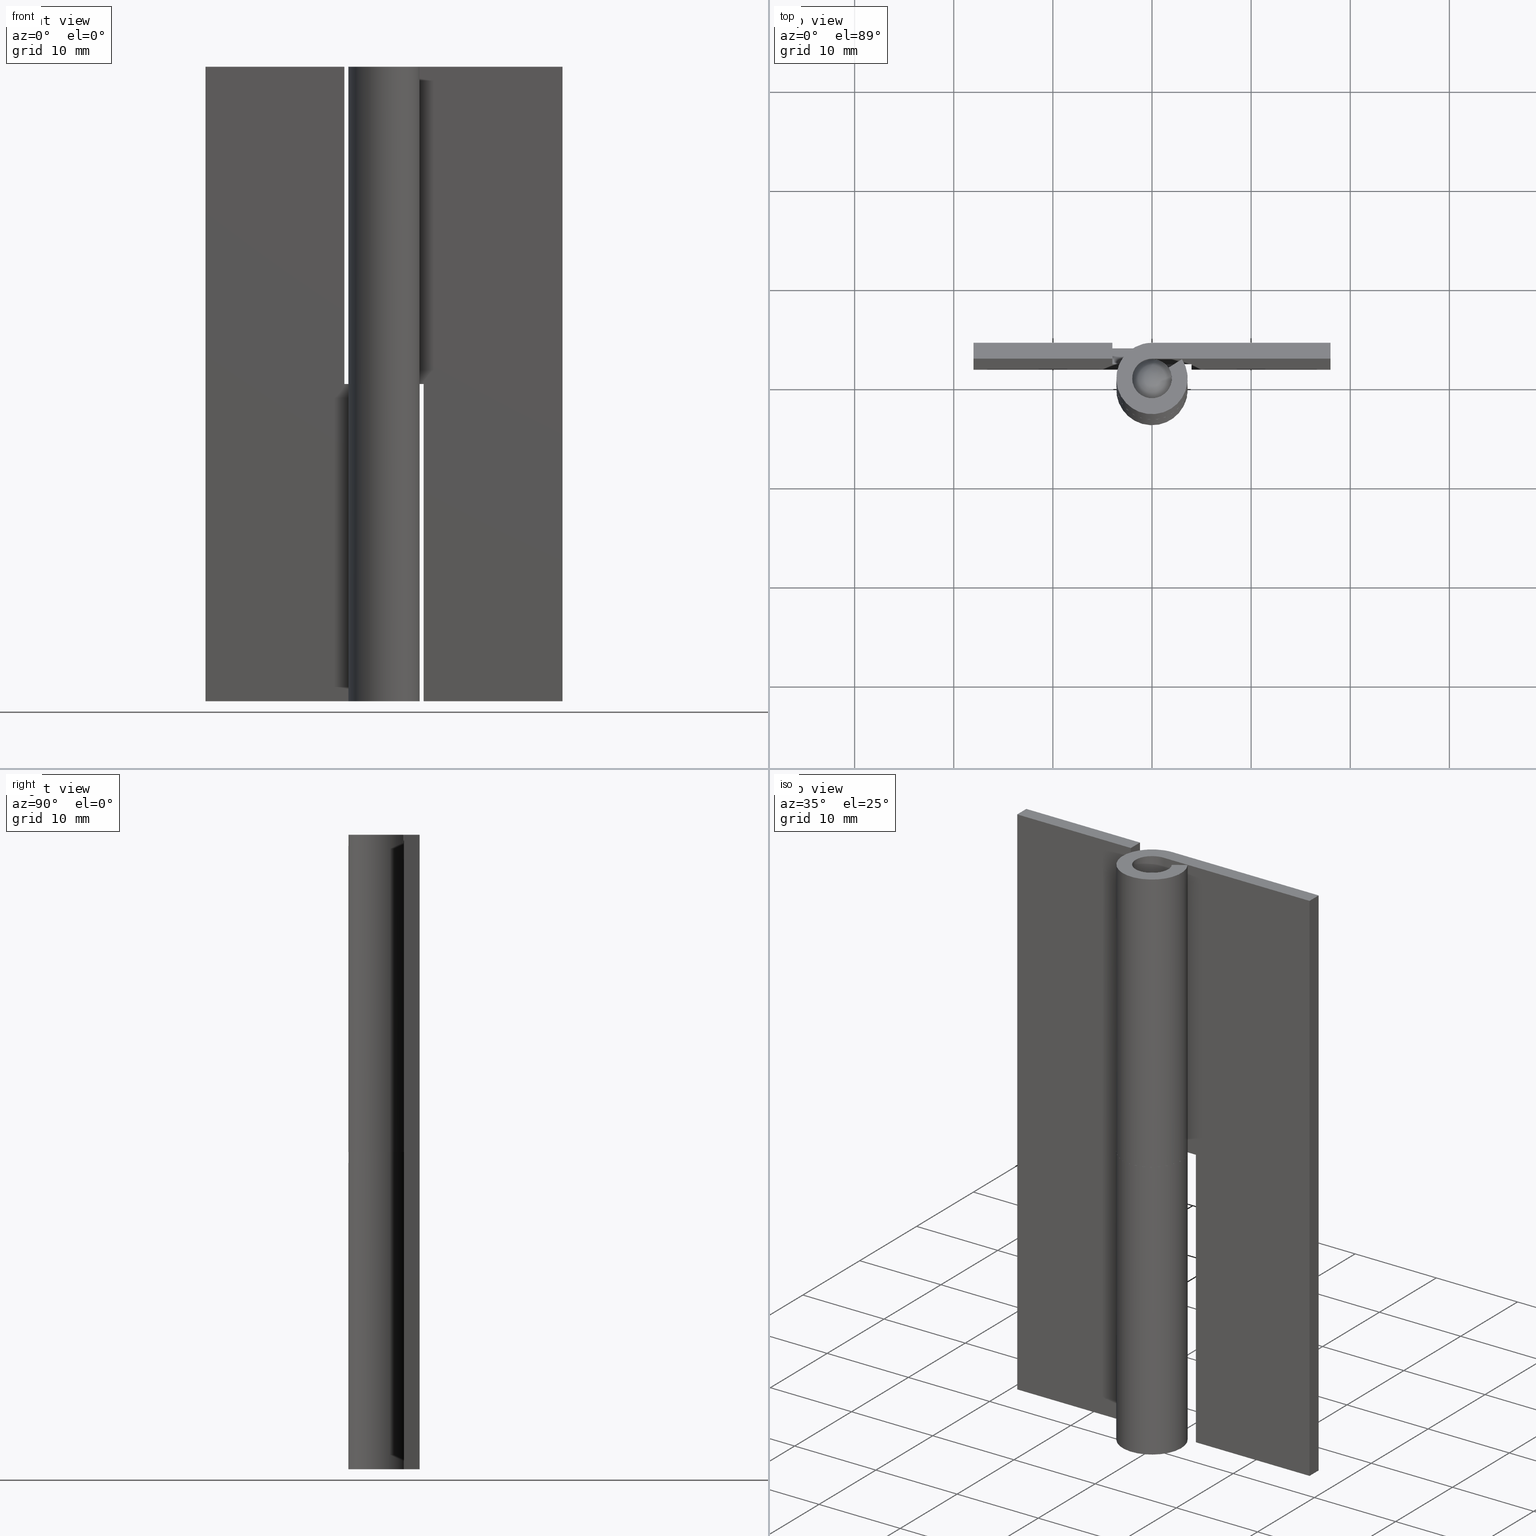
[diagram: canonical four-view strip — front | top / right | iso, engineering-drawing reading convention]
A machine part, canonical four-view strip (front | top / right | iso — engineering-drawing reading convention). The complete STEP part file that produces these views, byte-faithful:
ISO-10303-21;
HEADER;
/****************************************************************
 * Generated by software with PDE/Lib inside                    *
 * PDElib Version 4.4.1-0003, patched  Thursday August 19 11:58 *
 * International Technegroup Inc. (www.iti-oh.com)              *
 ****************************************************************/
FILE_DESCRIPTION((''),'2;1');
FILE_NAME('','2005-04-20T10:10:20',(''),(''),'','CADfix','');
FILE_SCHEMA(('AUTOMOTIVE_DESIGN'));
ENDSEC;
DATA;
#5=APPLICATION_CONTEXT('automotive design');
#6=APPLICATION_PROTOCOL_DEFINITION('Draft International Standard','automotive_design',1998,#5);
#7=PRODUCT_CONTEXT('None',#5,'mechanical');
#8=PRODUCT('shaft','','None',(#7));
#9=PRODUCT_RELATED_PRODUCT_CATEGORY('part','description',(#8));
#10=PRODUCT_DEFINITION_FORMATION('None','None',#8);
#11=PRODUCT_DEFINITION_CONTEXT('part definition',#5,'design');
#12=PRODUCT_DEFINITION('None','None',#10,#11);
#18=(NAMED_UNIT(*)PLANE_ANGLE_UNIT()SI_UNIT($,.RADIAN.));
#19=DIMENSIONAL_EXPONENTS(0.0,0.0,0.0,0.0,0.0,0.0,0.0);
#20=PLANE_ANGLE_MEASURE_WITH_UNIT(PLANE_ANGLE_MEASURE(0.017453292500000),#18);
#24=(CONVERSION_BASED_UNIT('DEGREE',#20)NAMED_UNIT(#19)PLANE_ANGLE_UNIT());
#28=(NAMED_UNIT(*)SI_UNIT($,.STERADIAN.)SOLID_ANGLE_UNIT());
#32=(LENGTH_UNIT()NAMED_UNIT(*)SI_UNIT(.MILLI.,.METRE.));
#34=UNCERTAINTY_MEASURE_WITH_UNIT(LENGTH_MEASURE(0.001000000000000),#32,'DISTANCE_ACCURACY_VALUE','');
#36=(GEOMETRIC_REPRESENTATION_CONTEXT(3)GLOBAL_UNCERTAINTY_ASSIGNED_CONTEXT((#34))GLOBAL_UNIT_ASSIGNED_CONTEXT((#24,#28,#32))REPRESENTATION_CONTEXT('None','None'));
#37=AXIS2_PLACEMENT_3D('',#38,#39,#40);
#38=CARTESIAN_POINT('',(0.0,0.0,0.0));
#39=DIRECTION('',(0.0,0.0,1.0));
#40=DIRECTION('',(1.0,0.0,0.0));
#41=ADVANCED_BREP_SHAPE_REPRESENTATION('',(#37,#274,#1096),#36);
#42=PRODUCT_DEFINITION_SHAPE('','',#12);
#43=SHAPE_DEFINITION_REPRESENTATION(#42,#41);
#44=CARTESIAN_POINT('',(-0.236068450853635,1.986018897426298,63.037498170657102));
#45=CARTESIAN_POINT('',(-0.179229443260722,1.992775075067863,63.037498170657088));
#46=CARTESIAN_POINT('',(-0.122097069522070,1.996269440741135,63.037498170657088));
#47=CARTESIAN_POINT('',(1.874172371219066,2.118366510263206,63.037498170657088));
#48=CARTESIAN_POINT('',(1.996269440741135,0.122097069522070,63.037498170657088));
#49=CARTESIAN_POINT('',(2.118366510263206,-1.874172371219066,63.037498170657088));
#50=CARTESIAN_POINT('',(0.122097069522070,-1.996269440741135,63.037498170657088));
#51=CARTESIAN_POINT('',(-0.236068450853635,1.986018897426298,-1.575937454266431));
#52=CARTESIAN_POINT('',(-0.179229443260722,1.992775075067863,-1.575937454266431));
#53=CARTESIAN_POINT('',(-0.122097069522070,1.996269440741135,-1.575937454266430));
#54=CARTESIAN_POINT('',(1.874172371219066,2.118366510263206,-1.575937454266431));
#55=CARTESIAN_POINT('',(1.996269440741135,0.122097069522070,-1.575937454266430));
#56=CARTESIAN_POINT('',(2.118366510263206,-1.874172371219066,-1.575937454266431));
#57=CARTESIAN_POINT('',(0.122097069522070,-1.996269440741135,-1.575937454266430));
#65=(BOUNDED_SURFACE()B_SPLINE_SURFACE(2,1,((#44,#51),(#45,#52),(#46,#53),(#47,#54),(#48,#55),(#49,#56),(#50,#57)),.UNSPECIFIED.,.F.,.F.,.U.)B_SPLINE_SURFACE_WITH_KNOTS((3,2,2,3),(2,2),(0.0,0.132548329594488,3.446256569456678,6.759964809318868),(0.0,64.613435624923540),.UNSPECIFIED.)GEOMETRIC_REPRESENTATION_ITEM()RATIONAL_B_SPLINE_SURFACE(((0.977505800795127,0.977505800795127),(0.988284271247462,0.988284271247462),(1.0,1.0),(0.707106781186548,0.707106781186548),(1.0,1.0),(0.707106781186548,0.707106781186548),(1.0,1.0)))REPRESENTATION_ITEM('')SURFACE());
#66=CARTESIAN_POINT('',(-0.236068460313633,1.986018975049470,2.725851E-015));
#67=VERTEX_POINT('',#66);
#68=CARTESIAN_POINT('',(2.0,0.0,0.0));
#69=VERTEX_POINT('',#68);
#70=CARTESIAN_POINT('',(-0.236068460313633,1.986018975049470,2.725851E-015));
#71=CARTESIAN_POINT('',(-0.118448239536309,2.0,0.0));
#72=CARTESIAN_POINT('',(0.0,2.0,0.0));
#73=CARTESIAN_POINT('',(2.000000000000000,2.000000000000000,0.0));
#74=CARTESIAN_POINT('',(2.0,0.0,0.0));
#82=(BOUNDED_CURVE()B_SPLINE_CURVE(2,(#70,#71,#72,#73,#74),.UNSPECIFIED.,.F.,.U.)B_SPLINE_CURVE_WITH_KNOTS((3,2,3),(0.229562473476490,0.250000000000000,0.500000000000000),.UNSPECIFIED.)CURVE()GEOMETRIC_REPRESENTATION_ITEM()RATIONAL_B_SPLINE_CURVE((0.956026754111142,0.976055948287776,1.0,0.707106781186548,1.0))REPRESENTATION_ITEM(''));
#83=EDGE_CURVE('',#67,#69,#82,.T.);
#84=ORIENTED_EDGE('',*,*,#83,.F.);
#85=CARTESIAN_POINT('',(-0.236068441853754,1.986018819748432,61.499998215275198));
#86=VERTEX_POINT('',#85);
#87=CARTESIAN_POINT('',(-0.236068441853754,1.986018819748432,61.499998215275198));
#88=CARTESIAN_POINT('',(-0.236068460313633,1.986018975049470,2.725851E-015));
#89=QUASI_UNIFORM_CURVE('',1,(#87,#88),.UNSPECIFIED.,.F.,.U.);
#90=EDGE_CURVE('',#86,#67,#89,.T.);
#91=ORIENTED_EDGE('',*,*,#90,.F.);
#92=CARTESIAN_POINT('',(1.999999687211385,0.0,61.499998215275198));
#93=VERTEX_POINT('',#92);
#94=CARTESIAN_POINT('',(-0.236068441853754,1.986018819748432,61.499998215275198));
#95=CARTESIAN_POINT('',(-0.118448221011683,1.999999687211385,61.499998215275198));
#96=CARTESIAN_POINT('',(0.0,1.999999687211385,61.499998215275198));
#97=CARTESIAN_POINT('',(1.999999687211385,1.999999687211385,61.499998215275198));
#98=CARTESIAN_POINT('',(1.999999687211385,0.0,61.499998215275198));
#106=(BOUNDED_CURVE()B_SPLINE_CURVE(2,(#94,#95,#96,#97,#98),.UNSPECIFIED.,.F.,.U.)B_SPLINE_CURVE_WITH_KNOTS((3,2,3),(0.229562473476490,0.250000000000000,0.500000000000000),.UNSPECIFIED.)CURVE()GEOMETRIC_REPRESENTATION_ITEM()RATIONAL_B_SPLINE_CURVE((0.956026754111141,0.976055948287775,1.0,0.707106781186547,1.0))REPRESENTATION_ITEM(''));
#107=EDGE_CURVE('',#86,#93,#106,.T.);
#108=ORIENTED_EDGE('',*,*,#107,.T.);
#109=CARTESIAN_POINT('',(0.122097064824999,-1.996269362685140,61.499998215275198));
#110=VERTEX_POINT('',#109);
#111=CARTESIAN_POINT('',(1.999999687211385,0.0,61.499998215275198));
#112=CARTESIAN_POINT('',(1.999999687211386,-1.881411839424297,61.499998215275198));
#113=CARTESIAN_POINT('',(0.122097064824999,-1.996269362685140,61.499998215275198));
#121=(BOUNDED_CURVE()B_SPLINE_CURVE(2,(#111,#112,#113),.UNSPECIFIED.,.F.,.U.)B_SPLINE_CURVE_WITH_KNOTS((3,3),(0.500000000000000,0.739332962228700),.UNSPECIFIED.)CURVE()GEOMETRIC_REPRESENTATION_ITEM()RATIONAL_B_SPLINE_CURVE((1.0,0.719603993298711,0.976072041644765))REPRESENTATION_ITEM(''));
#122=EDGE_CURVE('',#93,#110,#121,.T.);
#123=ORIENTED_EDGE('',*,*,#122,.T.);
#124=CARTESIAN_POINT('',(0.122097074372659,-1.996269518787739,2.775558E-015));
#125=VERTEX_POINT('',#124);
#126=CARTESIAN_POINT('',(0.122097064824999,-1.996269362685140,61.499998215275198));
#127=CARTESIAN_POINT('',(0.122097074372659,-1.996269518787739,2.775558E-015));
#128=QUASI_UNIFORM_CURVE('',1,(#126,#127),.UNSPECIFIED.,.F.,.U.);
#129=EDGE_CURVE('',#110,#125,#128,.T.);
#130=ORIENTED_EDGE('',*,*,#129,.T.);
#131=CARTESIAN_POINT('',(2.0,0.0,0.0));
#132=CARTESIAN_POINT('',(2.000000000000000,-1.881412133666420,0.0));
#133=CARTESIAN_POINT('',(0.122097074372659,-1.996269518787739,2.775558E-015));
#141=(BOUNDED_CURVE()B_SPLINE_CURVE(2,(#131,#132,#133),.UNSPECIFIED.,.F.,.U.)B_SPLINE_CURVE_WITH_KNOTS((3,3),(0.500000000000000,0.739332962228698),.UNSPECIFIED.)CURVE()GEOMETRIC_REPRESENTATION_ITEM()RATIONAL_B_SPLINE_CURVE((1.0,0.719603993298713,0.976072041644760))REPRESENTATION_ITEM(''));
#142=EDGE_CURVE('',#69,#125,#141,.T.);
#143=ORIENTED_EDGE('',*,*,#142,.F.);
#144=EDGE_LOOP('',(#84,#91,#108,#123,#130,#143));
#145=FACE_OUTER_BOUND('',#144,.T.);
#146=ADVANCED_FACE('',(#145),#65,.T.);
#147=CARTESIAN_POINT('',(0.122097069522070,-1.996269440741135,63.037498170657088));
#148=CARTESIAN_POINT('',(-1.874172371219066,-2.118366510263206,63.037498170657088));
#149=CARTESIAN_POINT('',(-1.996269440741135,-0.122097069522070,63.037498170657088));
#150=CARTESIAN_POINT('',(-2.111572228346107,1.763086843810621,63.037498170657088));
#151=CARTESIAN_POINT('',(-0.236068450853635,1.986018897426298,63.037498170657102));
#152=CARTESIAN_POINT('',(0.122097069522070,-1.996269440741135,-1.575937454266430));
#153=CARTESIAN_POINT('',(-1.874172371219066,-2.118366510263206,-1.575937454266431));
#154=CARTESIAN_POINT('',(-1.996269440741135,-0.122097069522070,-1.575937454266430));
#155=CARTESIAN_POINT('',(-2.111572228346107,1.763086843810621,-1.575937454266430));
#156=CARTESIAN_POINT('',(-0.236068450853635,1.986018897426298,-1.575937454266431));
#164=(BOUNDED_SURFACE()B_SPLINE_SURFACE(2,1,((#147,#152),(#148,#153),(#149,#154),(#150,#155),(#151,#156)),.UNSPECIFIED.,.F.,.F.,.U.)B_SPLINE_SURFACE_WITH_KNOTS((3,2,3),(2,2),(0.0,3.313708239862190,6.494868150129893),(0.0,64.613435624923540),.UNSPECIFIED.)GEOMETRIC_REPRESENTATION_ITEM()RATIONAL_B_SPLINE_SURFACE(((1.0,1.0),(0.707106781186548,0.707106781186548),(1.0,1.0),(0.718822509939086,0.718822509939086),(0.977505800795127,0.977505800795127)))REPRESENTATION_ITEM('')SURFACE());
#165=CARTESIAN_POINT('',(-2.0,0.0,0.0));
#166=VERTEX_POINT('',#165);
#167=CARTESIAN_POINT('',(-2.0,0.0,0.0));
#168=CARTESIAN_POINT('',(-2.0,1.776349051488299,0.0));
#169=CARTESIAN_POINT('',(-0.236068460313633,1.986018975049470,2.725851E-015));
#177=(BOUNDED_CURVE()B_SPLINE_CURVE(2,(#167,#168,#169),.UNSPECIFIED.,.F.,.U.)B_SPLINE_CURVE_WITH_KNOTS((3,3),(0.0,0.229562473476490),.UNSPECIFIED.)CURVE()GEOMETRIC_REPRESENTATION_ITEM()RATIONAL_B_SPLINE_CURVE((1.0,0.731050832898772,0.956026754111142))REPRESENTATION_ITEM(''));
#178=EDGE_CURVE('',#166,#67,#177,.T.);
#179=ORIENTED_EDGE('',*,*,#178,.F.);
#180=CARTESIAN_POINT('',(0.122097074372659,-1.996269518787740,2.775558E-015));
#181=CARTESIAN_POINT('',(0.061105526674160,-2.000000000000000,0.0));
#182=CARTESIAN_POINT('',(0.0,-2.0,0.0));
#183=CARTESIAN_POINT('',(-2.000000000000000,-2.000000000000000,0.0));
#184=CARTESIAN_POINT('',(-2.0,0.0,0.0));
#192=(BOUNDED_CURVE()B_SPLINE_CURVE(2,(#180,#181,#182,#183,#184),.UNSPECIFIED.,.F.,.U.)B_SPLINE_CURVE_WITH_KNOTS((3,2,3),(0.739332962228698,0.750000000000000,1.0),.UNSPECIFIED.)CURVE()GEOMETRIC_REPRESENTATION_ITEM()RATIONAL_B_SPLINE_CURVE((0.976072041644760,0.987502787887834,1.0,0.707106781186548,1.0))REPRESENTATION_ITEM(''));
#193=EDGE_CURVE('',#125,#166,#192,.T.);
#194=ORIENTED_EDGE('',*,*,#193,.F.);
#195=ORIENTED_EDGE('',*,*,#129,.F.);
#196=CARTESIAN_POINT('',(-1.999999687211385,0.0,61.499998215275198));
#197=VERTEX_POINT('',#196);
#198=CARTESIAN_POINT('',(0.122097064824999,-1.996269362685139,61.499998215275198));
#199=CARTESIAN_POINT('',(0.061105517117588,-1.999999687211385,61.499998215275198));
#200=CARTESIAN_POINT('',(0.0,-1.999999687211385,61.499998215275198));
#201=CARTESIAN_POINT('',(-1.999999687211385,-1.999999687211385,61.499998215275198));
#202=CARTESIAN_POINT('',(-1.999999687211385,0.0,61.499998215275198));
#210=(BOUNDED_CURVE()B_SPLINE_CURVE(2,(#198,#199,#200,#201,#202),.UNSPECIFIED.,.F.,.U.)B_SPLINE_CURVE_WITH_KNOTS((3,2,3),(0.739332962228700,0.750000000000000,1.0),.UNSPECIFIED.)CURVE()GEOMETRIC_REPRESENTATION_ITEM()RATIONAL_B_SPLINE_CURVE((0.976072041644766,0.987502787887838,1.0,0.707106781186547,1.0))REPRESENTATION_ITEM(''));
#211=EDGE_CURVE('',#110,#197,#210,.T.);
#212=ORIENTED_EDGE('',*,*,#211,.T.);
#213=CARTESIAN_POINT('',(-1.999999687211385,0.0,61.499998215275198));
#214=CARTESIAN_POINT('',(-1.999999687211385,1.776348773677413,61.499998215275198));
#215=CARTESIAN_POINT('',(-0.236068441853754,1.986018819748431,61.499998215275191));
#223=(BOUNDED_CURVE()B_SPLINE_CURVE(2,(#213,#214,#215),.UNSPECIFIED.,.F.,.U.)B_SPLINE_CURVE_WITH_KNOTS((3,3),(0.0,0.229562473476490),.UNSPECIFIED.)CURVE()GEOMETRIC_REPRESENTATION_ITEM()RATIONAL_B_SPLINE_CURVE((1.0,0.731050832898773,0.956026754111141))REPRESENTATION_ITEM(''));
#224=EDGE_CURVE('',#197,#86,#223,.T.);
#225=ORIENTED_EDGE('',*,*,#224,.T.);
#226=ORIENTED_EDGE('',*,*,#90,.T.);
#227=EDGE_LOOP('',(#179,#194,#195,#212,#225,#226));
#228=FACE_OUTER_BOUND('',#227,.T.);
#229=ADVANCED_FACE('',(#228),#164,.T.);
#230=CARTESIAN_POINT('',(2.199799992247224,-2.199751314024727,0.0));
#231=CARTESIAN_POINT('',(-2.199800099535584,-2.199751314024727,0.0));
#232=CARTESIAN_POINT('',(2.199799992247224,2.199763616423408,0.0));
#233=CARTESIAN_POINT('',(-2.199800099535584,2.199763616423408,0.0));
#234=B_SPLINE_SURFACE_WITH_KNOTS('',1,1,((#230,#232),(#231,#233)),.UNSPECIFIED.,.F.,.F.,.U.,(2,2),(2,2),(0.0,4.399600091782808),(0.0,4.399514930448135),.UNSPECIFIED.);
#235=ORIENTED_EDGE('',*,*,#178,.T.);
#236=ORIENTED_EDGE('',*,*,#83,.T.);
#237=ORIENTED_EDGE('',*,*,#142,.T.);
#238=ORIENTED_EDGE('',*,*,#193,.T.);
#239=EDGE_LOOP('',(#235,#236,#237,#238));
#240=FACE_OUTER_BOUND('',#239,.T.);
#241=ADVANCED_FACE('',(#240),#234,.T.);
#242=CARTESIAN_POINT('',(-1.461900274785525,-1.461900274785524,60.659815701669132));
#243=CARTESIAN_POINT('',(-1.016368766600801,-2.032737533201604,61.373014109785842));
#244=CARTESIAN_POINT('',(1.016368766600802,-2.032737533201604,61.373014109785842));
#245=CARTESIAN_POINT('',(1.461900274785524,-1.461900274785524,60.659815701669132));
#246=CARTESIAN_POINT('',(-2.032737533201602,-1.016368766600802,61.373014109785899));
#247=CARTESIAN_POINT('',(-1.667480023164929,-1.667480023164936,62.999997999999898));
#248=CARTESIAN_POINT('',(1.667480023164938,-1.667480023164936,62.999997999999891));
#249=CARTESIAN_POINT('',(2.032737533201604,-1.016368766600802,61.373014109785842));
#250=CARTESIAN_POINT('',(-2.032737533201602,1.016368766600801,61.373014109785899));
#251=CARTESIAN_POINT('',(-1.667480023164929,1.667480023164932,62.999997999999913));
#252=CARTESIAN_POINT('',(1.667480023164938,1.667480023164932,62.999997999999898));
#253=CARTESIAN_POINT('',(2.032737533201604,1.016368766600801,61.373014109785842));
#254=CARTESIAN_POINT('',(-1.461900274785525,1.461900274785525,60.659815701669132));
#255=CARTESIAN_POINT('',(-1.016368766600801,2.032737533201602,61.373014109785899));
#256=CARTESIAN_POINT('',(1.016368766600802,2.032737533201602,61.373014109785842));
#257=CARTESIAN_POINT('',(1.461900274785524,1.461900274785525,60.659815701669132));
#265=(BOUNDED_SURFACE()B_SPLINE_SURFACE(2,2,((#242,#246,#250,#254),(#243,#247,#251,#255),(#244,#248,#252,#256),(#245,#249,#253,#257)),.UNSPECIFIED.,.F.,.F.,.U.)B_SPLINE_SURFACE_WITH_KNOTS((3,1,3),(3,1,3),(0.0,2.525886884444863,5.051773768889725),(0.0,2.525886884444871,5.051773768889741),.UNSPECIFIED.)GEOMETRIC_REPRESENTATION_ITEM()RATIONAL_B_SPLINE_SURFACE(((2.281250030422999,1.640625015211500,1.640625015211500,2.281250030422999),(1.640625015211500,1.0,1.0,1.640625015211500),(1.640625015211500,1.0,1.0,1.640625015211500),(2.281250030422999,1.640625015211500,1.640625015211500,2.281250030422999)))REPRESENTATION_ITEM('')SURFACE());
#266=ORIENTED_EDGE('',*,*,#211,.F.);
#267=ORIENTED_EDGE('',*,*,#122,.F.);
#268=ORIENTED_EDGE('',*,*,#107,.F.);
#269=ORIENTED_EDGE('',*,*,#224,.F.);
#270=EDGE_LOOP('',(#266,#267,#268,#269));
#271=FACE_OUTER_BOUND('',#270,.T.);
#272=ADVANCED_FACE('',(#271),#265,.T.);
#273=CLOSED_SHELL('',(#146,#229,#241,#272));
#274=MANIFOLD_SOLID_BREP('shaft',#273);
#275=APPLICATION_CONTEXT('automotive design');
#276=APPLICATION_PROTOCOL_DEFINITION('Draft International Standard','automotive_design',1998,#275);
#277=PRODUCT_CONTEXT('None',#275,'mechanical');
#278=PRODUCT('hinge piece_B','','None',(#277));
#279=PRODUCT_RELATED_PRODUCT_CATEGORY('part','description',(#278));
#280=PRODUCT_DEFINITION_FORMATION('None','None',#278);
#281=PRODUCT_DEFINITION_CONTEXT('part definition',#275,'design');
#282=PRODUCT_DEFINITION('None','None',#280,#281);
#288=(NAMED_UNIT(*)PLANE_ANGLE_UNIT()SI_UNIT($,.RADIAN.));
#289=DIMENSIONAL_EXPONENTS(0.0,0.0,0.0,0.0,0.0,0.0,0.0);
#290=PLANE_ANGLE_MEASURE_WITH_UNIT(PLANE_ANGLE_MEASURE(0.017453292500000),#288);
#294=(CONVERSION_BASED_UNIT('DEGREE',#290)NAMED_UNIT(#289)PLANE_ANGLE_UNIT());
#298=(NAMED_UNIT(*)SI_UNIT($,.STERADIAN.)SOLID_ANGLE_UNIT());
#302=(LENGTH_UNIT()NAMED_UNIT(*)SI_UNIT(.MILLI.,.METRE.));
#304=UNCERTAINTY_MEASURE_WITH_UNIT(LENGTH_MEASURE(0.001000000000000),#302,'DISTANCE_ACCURACY_VALUE','');
#306=(GEOMETRIC_REPRESENTATION_CONTEXT(3)GLOBAL_UNCERTAINTY_ASSIGNED_CONTEXT((#304))GLOBAL_UNIT_ASSIGNED_CONTEXT((#294,#298,#302))REPRESENTATION_CONTEXT('None','None'));
#307=AXIS2_PLACEMENT_3D('',#308,#309,#310);
#308=CARTESIAN_POINT('',(0.0,0.0,0.0));
#309=DIRECTION('',(0.0,0.0,1.0));
#310=DIRECTION('',(1.0,0.0,0.0));
#311=ADVANCED_BREP_SHAPE_REPRESENTATION('',(#307,#661,#1112),#306);
#312=PRODUCT_DEFINITION_SHAPE('','',#282);
#313=SHAPE_DEFINITION_REPRESENTATION(#312,#311);
#314=CARTESIAN_POINT('',(4.0,1.920080103001107,33.598408037184647));
#315=CARTESIAN_POINT('',(4.0,1.920080103001107,-1.598401181594062));
#316=CARTESIAN_POINT('',(4.0,3.679917939914185,33.598408037184647));
#317=CARTESIAN_POINT('',(4.0,3.679917939914185,-1.598401181594062));
#318=B_SPLINE_SURFACE_WITH_KNOTS('',1,1,((#314,#316),(#315,#317)),.UNSPECIFIED.,.F.,.F.,.U.,(2,2),(2,2),(0.0,35.196809218778711),(0.041708334948495,0.958291687403247),.UNSPECIFIED.);
#319=CARTESIAN_POINT('',(4.0,2.0,0.0));
#320=VERTEX_POINT('',#319);
#321=CARTESIAN_POINT('',(4.0,2.0,32.000008000000051));
#322=VERTEX_POINT('',#321);
#323=CARTESIAN_POINT('',(4.0,2.0,0.0));
#324=CARTESIAN_POINT('',(4.0,2.0,32.000008000000051));
#325=QUASI_UNIFORM_CURVE('',1,(#323,#324),.UNSPECIFIED.,.F.,.U.);
#326=EDGE_CURVE('',#320,#322,#325,.T.);
#327=ORIENTED_EDGE('',*,*,#326,.T.);
#328=CARTESIAN_POINT('',(4.0,3.599998000000000,32.000008000000051));
#329=VERTEX_POINT('',#328);
#330=CARTESIAN_POINT('',(4.0,3.599998000000000,32.000008000000051));
#331=CARTESIAN_POINT('',(4.0,2.0,32.000008000000051));
#332=QUASI_UNIFORM_CURVE('',1,(#330,#331),.UNSPECIFIED.,.F.,.U.);
#333=EDGE_CURVE('',#329,#322,#332,.T.);
#334=ORIENTED_EDGE('',*,*,#333,.F.);
#335=CARTESIAN_POINT('',(4.0,3.599998000000000,0.0));
#336=VERTEX_POINT('',#335);
#337=CARTESIAN_POINT('',(4.0,3.599998000000000,0.0));
#338=CARTESIAN_POINT('',(4.0,3.599998000000000,32.000008000000051));
#339=QUASI_UNIFORM_CURVE('',1,(#337,#338),.UNSPECIFIED.,.F.,.U.);
#340=EDGE_CURVE('',#336,#329,#339,.T.);
#341=ORIENTED_EDGE('',*,*,#340,.F.);
#342=CARTESIAN_POINT('',(4.0,3.599998000000000,0.0));
#343=CARTESIAN_POINT('',(4.0,2.0,0.0));
#344=QUASI_UNIFORM_CURVE('',1,(#342,#343),.UNSPECIFIED.,.F.,.U.);
#345=EDGE_CURVE('',#336,#320,#344,.T.);
#346=ORIENTED_EDGE('',*,*,#345,.T.);
#347=EDGE_LOOP('',(#327,#334,#341,#346));
#348=FACE_OUTER_BOUND('',#347,.T.);
#349=ADVANCED_FACE('',(#348),#318,.F.);
#350=CARTESIAN_POINT('',(-3.979172798434082,-3.957971869725389,32.000008000000051));
#351=CARTESIAN_POINT('',(4.379598914777301,-3.957971869725389,32.000008000000051));
#352=CARTESIAN_POINT('',(-3.979172798434082,3.959558725521612,32.000008000000051));
#353=CARTESIAN_POINT('',(4.379598914777301,3.959558725521612,32.000008000000051));
#354=B_SPLINE_SURFACE_WITH_KNOTS('',1,1,((#350,#352),(#351,#353)),.UNSPECIFIED.,.F.,.F.,.U.,(2,2),(2,2),(0.0,8.358771713211382),(0.0,7.917530595247001),.UNSPECIFIED.);
#355=CARTESIAN_POINT('',(0.0,2.0,32.000008000000051));
#356=VERTEX_POINT('',#355);
#357=CARTESIAN_POINT('',(4.0,2.0,32.000008000000051));
#358=CARTESIAN_POINT('',(0.0,2.0,32.000008000000051));
#359=QUASI_UNIFORM_CURVE('',1,(#357,#358),.UNSPECIFIED.,.F.,.U.);
#360=EDGE_CURVE('',#322,#356,#359,.T.);
#361=ORIENTED_EDGE('',*,*,#360,.T.);
#362=CARTESIAN_POINT('',(1.681186750152665,1.083333333333334,32.000008000000051));
#363=VERTEX_POINT('',#362);
#364=CARTESIAN_POINT('',(0.0,2.0,32.000008000000051));
#365=CARTESIAN_POINT('',(-1.554136556548023,2.000000000000000,32.000008000000051));
#366=CARTESIAN_POINT('',(-1.938025359003881,0.494021971027481,32.000008000000051));
#367=CARTESIAN_POINT('',(-2.321914161459739,-1.011956057945038,32.000008000000051));
#368=CARTESIAN_POINT('',(-0.957427107756339,-1.755942292142123,32.000008000000051));
#369=CARTESIAN_POINT('',(0.407059945947064,-2.499928526339208,32.000008000000051));
#370=CARTESIAN_POINT('',(1.465035332114956,-1.361496043202044,32.000008000000051));
#371=CARTESIAN_POINT('',(2.523010718282848,-0.223063560064880,32.000008000000051));
#372=CARTESIAN_POINT('',(1.681186750152668,1.083333333333334,32.000008000000051));
#380=(BOUNDED_CURVE()B_SPLINE_CURVE(2,(#364,#365,#366,#367,#368,#369,#370,#371,#372),.UNSPECIFIED.,.F.,.U.)B_SPLINE_CURVE_WITH_KNOTS((3,2,2,2,3),(0.0,0.250000000000000,0.500000000000000,0.750000000000000,1.0),.UNSPECIFIED.)CURVE()GEOMETRIC_REPRESENTATION_ITEM()RATIONAL_B_SPLINE_CURVE((1.0,0.789623639943024,1.0,0.789623639943024,1.0,0.789623639943024,1.0,0.789623639943024,1.0))REPRESENTATION_ITEM(''));
#381=EDGE_CURVE('',#356,#363,#380,.T.);
#382=ORIENTED_EDGE('',*,*,#381,.T.);
#383=CARTESIAN_POINT('',(3.026136150274800,1.950000000000000,32.000008000000051));
#384=VERTEX_POINT('',#383);
#385=CARTESIAN_POINT('',(1.681186750152665,1.083333333333334,32.000008000000051));
#386=CARTESIAN_POINT('',(3.026136150274800,1.950000000000000,32.000008000000051));
#387=QUASI_UNIFORM_CURVE('',1,(#385,#386),.UNSPECIFIED.,.F.,.U.);
#388=EDGE_CURVE('',#363,#384,#387,.T.);
#389=ORIENTED_EDGE('',*,*,#388,.T.);
#390=CARTESIAN_POINT('',(-0.003794732665984,3.599998000000000,32.000008000000051));
#391=VERTEX_POINT('',#390);
#392=CARTESIAN_POINT('',(-0.003794732665984,3.599997999999999,32.000008000000051));
#393=CARTESIAN_POINT('',(-2.800478292793388,3.597050035456120,32.000008000000058));
#394=CARTESIAN_POINT('',(-3.489147561616323,0.886481411687164,32.000008000000051));
#395=CARTESIAN_POINT('',(-4.177816830439257,-1.824087212081792,32.000008000000058));
#396=CARTESIAN_POINT('',(-1.721702721479357,-3.161603981976645,32.000008000000051));
#397=CARTESIAN_POINT('',(0.734411387480544,-4.499120751871498,32.000008000000058));
#398=CARTESIAN_POINT('',(2.637709320543041,-2.449997865370574,32.000008000000051));
#399=CARTESIAN_POINT('',(4.541007253605536,-0.400874978869650,32.000008000000058));
#400=CARTESIAN_POINT('',(3.026136150274803,1.949999999999999,32.000008000000051));
#408=(BOUNDED_CURVE()B_SPLINE_CURVE(2,(#392,#393,#394,#395,#396,#397,#398,#399,#400),.UNSPECIFIED.,.F.,.U.)B_SPLINE_CURVE_WITH_KNOTS((3,2,2,2,3),(0.0,0.250000000000000,0.500000000000000,0.750000000000000,1.0),.UNSPECIFIED.)CURVE()GEOMETRIC_REPRESENTATION_ITEM()RATIONAL_B_SPLINE_CURVE((1.0,0.789704480868727,1.0,0.789704480868727,1.0,0.789704480868727,1.0,0.789704480868727,1.0))REPRESENTATION_ITEM(''));
#409=EDGE_CURVE('',#391,#384,#408,.T.);
#410=ORIENTED_EDGE('',*,*,#409,.F.);
#411=CARTESIAN_POINT('',(4.0,3.599998000000000,32.000008000000051));
#412=CARTESIAN_POINT('',(-0.003794732665984,3.599998000000000,32.000008000000051));
#413=QUASI_UNIFORM_CURVE('',1,(#411,#412),.UNSPECIFIED.,.F.,.U.);
#414=EDGE_CURVE('',#329,#391,#413,.T.);
#415=ORIENTED_EDGE('',*,*,#414,.F.);
#416=ORIENTED_EDGE('',*,*,#333,.T.);
#417=EDGE_LOOP('',(#361,#382,#389,#410,#415,#416));
#418=FACE_OUTER_BOUND('',#417,.T.);
#419=ADVANCED_FACE('',(#418),#354,.F.);
#420=CARTESIAN_POINT('',(-4.678473124545302,-3.957971905411489,64.000007999999994));
#421=CARTESIAN_POINT('',(19.078899279957060,-3.957971905411489,64.000007999999994));
#422=CARTESIAN_POINT('',(-4.678473124545302,3.959558727219332,64.000007999999994));
#423=CARTESIAN_POINT('',(19.078899279957060,3.959558727219332,64.000007999999994));
#424=B_SPLINE_SURFACE_WITH_KNOTS('',1,1,((#420,#422),(#421,#423)),.UNSPECIFIED.,.F.,.F.,.U.,(2,2),(2,2),(0.0,23.757372404502370),(0.0,7.917530632630820),.UNSPECIFIED.);
#425=CARTESIAN_POINT('',(1.681186750152665,1.083333333333334,64.000008000000093));
#426=VERTEX_POINT('',#425);
#427=CARTESIAN_POINT('',(0.0,2.0,64.000008000000093));
#428=VERTEX_POINT('',#427);
#429=CARTESIAN_POINT('',(1.681186750152667,1.083333333333335,64.000008000000093));
#430=CARTESIAN_POINT('',(2.523010718282847,-0.223063560064879,64.000008000000093));
#431=CARTESIAN_POINT('',(1.465035332114957,-1.361496043202043,64.000008000000093));
#432=CARTESIAN_POINT('',(0.407059945947065,-2.499928526339208,64.000008000000093));
#433=CARTESIAN_POINT('',(-0.957427107756338,-1.755942292142124,64.000008000000093));
#434=CARTESIAN_POINT('',(-2.321914161459740,-1.011956057945040,64.000008000000093));
#435=CARTESIAN_POINT('',(-1.938025359003882,0.494021971027480,64.000008000000093));
#436=CARTESIAN_POINT('',(-1.554136556548024,2.0,64.000008000000093));
#437=CARTESIAN_POINT('',(0.0,2.0,64.000008000000093));
#445=(BOUNDED_CURVE()B_SPLINE_CURVE(2,(#429,#430,#431,#432,#433,#434,#435,#436,#437),.UNSPECIFIED.,.F.,.U.)B_SPLINE_CURVE_WITH_KNOTS((3,2,2,2,3),(0.0,0.250000000000000,0.500000000000000,0.750000000000000,1.0),.UNSPECIFIED.)CURVE()GEOMETRIC_REPRESENTATION_ITEM()RATIONAL_B_SPLINE_CURVE((1.0,0.789623639943024,1.0,0.789623639943024,1.0,0.789623639943024,1.0,0.789623639943024,1.0))REPRESENTATION_ITEM(''));
#446=EDGE_CURVE('',#426,#428,#445,.T.);
#447=ORIENTED_EDGE('',*,*,#446,.T.);
#448=CARTESIAN_POINT('',(18.0,2.0,64.000008000000093));
#449=VERTEX_POINT('',#448);
#450=CARTESIAN_POINT('',(0.0,2.0,64.000008000000093));
#451=CARTESIAN_POINT('',(18.0,2.0,64.000008000000093));
#452=QUASI_UNIFORM_CURVE('',1,(#450,#451),.UNSPECIFIED.,.F.,.U.);
#453=EDGE_CURVE('',#428,#449,#452,.T.);
#454=ORIENTED_EDGE('',*,*,#453,.T.);
#455=CARTESIAN_POINT('',(18.0,3.599998000000000,64.000008000000093));
#456=VERTEX_POINT('',#455);
#457=CARTESIAN_POINT('',(18.0,2.0,64.000008000000093));
#458=CARTESIAN_POINT('',(18.0,3.599998000000000,64.000008000000093));
#459=QUASI_UNIFORM_CURVE('',1,(#457,#458),.UNSPECIFIED.,.F.,.U.);
#460=EDGE_CURVE('',#449,#456,#459,.T.);
#461=ORIENTED_EDGE('',*,*,#460,.T.);
#462=CARTESIAN_POINT('',(-0.003794732665984,3.599998000000000,64.000008000000093));
#463=VERTEX_POINT('',#462);
#464=CARTESIAN_POINT('',(18.0,3.599998000000000,64.000008000000093));
#465=CARTESIAN_POINT('',(-0.003794732665984,3.599998000000000,64.000008000000093));
#466=QUASI_UNIFORM_CURVE('',1,(#464,#465),.UNSPECIFIED.,.F.,.U.);
#467=EDGE_CURVE('',#456,#463,#466,.T.);
#468=ORIENTED_EDGE('',*,*,#467,.T.);
#469=CARTESIAN_POINT('',(3.026136150274800,1.950000000000000,64.000008000000093));
#470=VERTEX_POINT('',#469);
#471=CARTESIAN_POINT('',(3.026136150274802,1.950000000000000,64.000008000000093));
#472=CARTESIAN_POINT('',(4.541007253605536,-0.400874978869648,64.000008000000093));
#473=CARTESIAN_POINT('',(2.637709320543042,-2.449997865370572,64.000008000000093));
#474=CARTESIAN_POINT('',(0.734411387480545,-4.499120751871497,64.000008000000093));
#475=CARTESIAN_POINT('',(-1.721702721479355,-3.161603981976646,64.000008000000093));
#476=CARTESIAN_POINT('',(-4.177816830439255,-1.824087212081795,64.000008000000093));
#477=CARTESIAN_POINT('',(-3.489147561616325,0.886481411687160,64.000008000000093));
#478=CARTESIAN_POINT('',(-2.800478292793393,3.597050035456119,64.000008000000093));
#479=CARTESIAN_POINT('',(-0.003794732665985,3.599997999999999,64.000008000000093));
#487=(BOUNDED_CURVE()B_SPLINE_CURVE(2,(#471,#472,#473,#474,#475,#476,#477,#478,#479),.UNSPECIFIED.,.F.,.U.)B_SPLINE_CURVE_WITH_KNOTS((3,2,2,2,3),(0.0,0.250000000000000,0.500000000000000,0.750000000000000,1.0),.UNSPECIFIED.)CURVE()GEOMETRIC_REPRESENTATION_ITEM()RATIONAL_B_SPLINE_CURVE((1.0,0.789704480868727,1.0,0.789704480868727,1.0,0.789704480868727,1.0,0.789704480868727,1.0))REPRESENTATION_ITEM(''));
#488=EDGE_CURVE('',#470,#463,#487,.T.);
#489=ORIENTED_EDGE('',*,*,#488,.F.);
#490=CARTESIAN_POINT('',(3.026136150274800,1.950000000000000,64.000008000000093));
#491=CARTESIAN_POINT('',(1.681186750152665,1.083333333333334,64.000008000000093));
#492=QUASI_UNIFORM_CURVE('',1,(#490,#491),.UNSPECIFIED.,.F.,.U.);
#493=EDGE_CURVE('',#470,#426,#492,.T.);
#494=ORIENTED_EDGE('',*,*,#493,.T.);
#495=EDGE_LOOP('',(#447,#454,#461,#468,#489,#494));
#496=FACE_OUTER_BOUND('',#495,.T.);
#497=ADVANCED_FACE('',(#496),#424,.T.);
#498=CARTESIAN_POINT('',(3.300700027134716,1.920080103001107,0.0));
#499=CARTESIAN_POINT('',(18.699300348374539,1.920080103001107,0.0));
#500=CARTESIAN_POINT('',(3.300700027134716,3.679917939914185,0.0));
#501=CARTESIAN_POINT('',(18.699300348374539,3.679917939914185,0.0));
#502=B_SPLINE_SURFACE_WITH_KNOTS('',1,1,((#498,#500),(#499,#501)),.UNSPECIFIED.,.F.,.F.,.U.,(2,2),(2,2),(0.0,15.398600321239829),(0.041708334948495,0.958291687403247),.UNSPECIFIED.);
#503=ORIENTED_EDGE('',*,*,#345,.F.);
#504=CARTESIAN_POINT('',(18.0,3.599998000000000,0.0));
#505=VERTEX_POINT('',#504);
#506=CARTESIAN_POINT('',(18.0,3.599998000000000,0.0));
#507=CARTESIAN_POINT('',(4.0,3.599998000000000,0.0));
#508=QUASI_UNIFORM_CURVE('',1,(#506,#507),.UNSPECIFIED.,.F.,.U.);
#509=EDGE_CURVE('',#505,#336,#508,.T.);
#510=ORIENTED_EDGE('',*,*,#509,.F.);
#511=CARTESIAN_POINT('',(18.0,2.0,0.0));
#512=VERTEX_POINT('',#511);
#513=CARTESIAN_POINT('',(18.0,2.0,0.0));
#514=CARTESIAN_POINT('',(18.0,3.599998000000000,0.0));
#515=QUASI_UNIFORM_CURVE('',1,(#513,#514),.UNSPECIFIED.,.F.,.U.);
#516=EDGE_CURVE('',#512,#505,#515,.T.);
#517=ORIENTED_EDGE('',*,*,#516,.F.);
#518=CARTESIAN_POINT('',(4.0,2.0,0.0));
#519=CARTESIAN_POINT('',(18.0,2.0,0.0));
#520=QUASI_UNIFORM_CURVE('',1,(#518,#519),.UNSPECIFIED.,.F.,.U.);
#521=EDGE_CURVE('',#320,#512,#520,.T.);
#522=ORIENTED_EDGE('',*,*,#521,.F.);
#523=EDGE_LOOP('',(#503,#510,#517,#522));
#524=FACE_OUTER_BOUND('',#523,.T.);
#525=ADVANCED_FACE('',(#524),#502,.F.);
#526=CARTESIAN_POINT('',(3.093316403275292,1.993290019630829,30.401607461236051));
#527=CARTESIAN_POINT('',(1.614006593350452,1.040043375691333,30.401607461236051));
#528=CARTESIAN_POINT('',(3.093316403275292,1.993290019630829,65.598408824866382));
#529=CARTESIAN_POINT('',(1.614006593350452,1.040043375691333,65.598408824866382));
#530=B_SPLINE_SURFACE_WITH_KNOTS('',1,1,((#526,#528),(#527,#529)),.UNSPECIFIED.,.F.,.F.,.U.,(2,2),(2,2),(0.041708314457536,0.958291625937819),(0.0,35.196801363630328),.UNSPECIFIED.);
#531=ORIENTED_EDGE('',*,*,#388,.F.);
#532=CARTESIAN_POINT('',(1.681186750152665,1.083333333333334,32.000008000000051));
#533=CARTESIAN_POINT('',(1.681186750152665,1.083333333333334,64.000008000000093));
#534=QUASI_UNIFORM_CURVE('',1,(#532,#533),.UNSPECIFIED.,.F.,.U.);
#535=EDGE_CURVE('',#363,#426,#534,.T.);
#536=ORIENTED_EDGE('',*,*,#535,.T.);
#537=ORIENTED_EDGE('',*,*,#493,.F.);
#538=CARTESIAN_POINT('',(3.026136150274800,1.950000000000000,32.000008000000051));
#539=CARTESIAN_POINT('',(3.026136150274800,1.950000000000000,64.000008000000093));
#540=QUASI_UNIFORM_CURVE('',1,(#538,#539),.UNSPECIFIED.,.F.,.U.);
#541=EDGE_CURVE('',#384,#470,#540,.T.);
#542=ORIENTED_EDGE('',*,*,#541,.F.);
#543=EDGE_LOOP('',(#531,#536,#537,#542));
#544=FACE_OUTER_BOUND('',#543,.T.);
#545=ADVANCED_FACE('',(#544),#530,.T.);
#546=CARTESIAN_POINT('',(2.964703270537402,2.042188658685780,31.200008000000039));
#547=CARTESIAN_POINT('',(2.964703270537402,2.042188658685780,64.820008000000115));
#548=CARTESIAN_POINT('',(5.532086281403621,-1.684954167548272,31.200008000000043));
#549=CARTESIAN_POINT('',(5.532086281403621,-1.684954167548272,64.820008000000115));
#550=CARTESIAN_POINT('',(1.322934369143241,-3.348110609722978,31.200008000000039));
#551=CARTESIAN_POINT('',(1.322934369143241,-3.348110609722978,64.820008000000115));
#552=CARTESIAN_POINT('',(-2.886217543117140,-5.011267051897684,31.200008000000043));
#553=CARTESIAN_POINT('',(-2.886217543117140,-5.011267051897684,64.820008000000115));
#554=CARTESIAN_POINT('',(-3.559894232870420,-0.535866635251648,31.200008000000039));
#555=CARTESIAN_POINT('',(-3.559894232870420,-0.535866635251648,64.820008000000115));
#556=CARTESIAN_POINT('',(-4.233570922623700,3.939533781394387,31.200008000000043));
#557=CARTESIAN_POINT('',(-4.233570922623700,3.939533781394387,64.820008000000115));
#558=CARTESIAN_POINT('',(0.278669552930452,3.589198138898094,31.200008000000039));
#559=CARTESIAN_POINT('',(0.278669552930452,3.589198138898094,64.820008000000115));
#567=(BOUNDED_SURFACE()B_SPLINE_SURFACE(1,2,((#546,#548,#550,#552,#554,#556,#558),(#547,#549,#551,#553,#555,#557,#559)),.UNSPECIFIED.,.F.,.F.,.U.)B_SPLINE_SURFACE_WITH_KNOTS((2,2),(3,2,2,3),(0.0,33.620000000000083),(0.0,6.945735467773017,13.891470935546030,20.837206403319051),.UNSPECIFIED.)GEOMETRIC_REPRESENTATION_ITEM()RATIONAL_B_SPLINE_SURFACE(((1.0,0.622514636637620,1.0,0.622514636637620,1.0,0.622514636637620,1.0),(1.0,0.622514636637620,1.0,0.622514636637620,1.0,0.622514636637620,1.0)))REPRESENTATION_ITEM('')SURFACE());
#568=CARTESIAN_POINT('',(-0.003794732665984,3.599998000000000,32.000008000000051));
#569=CARTESIAN_POINT('',(-0.003794732665984,3.599998000000000,64.000008000000093));
#570=QUASI_UNIFORM_CURVE('',1,(#568,#569),.UNSPECIFIED.,.F.,.U.);
#571=EDGE_CURVE('',#391,#463,#570,.T.);
#572=ORIENTED_EDGE('',*,*,#571,.F.);
#573=ORIENTED_EDGE('',*,*,#409,.T.);
#574=ORIENTED_EDGE('',*,*,#541,.T.);
#575=ORIENTED_EDGE('',*,*,#488,.T.);
#576=EDGE_LOOP('',(#572,#573,#574,#575));
#577=FACE_OUTER_BOUND('',#576,.T.);
#578=ADVANCED_FACE('',(#577),#567,.T.);
#579=CARTESIAN_POINT('',(-0.903084244667801,3.599998000000000,-3.196800275555570));
#580=CARTESIAN_POINT('',(-0.903084244667801,3.599998000000000,67.196809992169648));
#581=CARTESIAN_POINT('',(18.899289994901221,3.599998000000000,-3.196800275555570));
#582=CARTESIAN_POINT('',(18.899289994901221,3.599998000000000,67.196809992169648));
#583=B_SPLINE_SURFACE_WITH_KNOTS('',1,1,((#579,#581),(#580,#582)),.UNSPECIFIED.,.F.,.F.,.U.,(2,2),(2,2),(0.0,70.393610267725222),(0.0,19.802374239569030),.UNSPECIFIED.);
#584=ORIENTED_EDGE('',*,*,#340,.T.);
#585=ORIENTED_EDGE('',*,*,#414,.T.);
#586=ORIENTED_EDGE('',*,*,#571,.T.);
#587=ORIENTED_EDGE('',*,*,#467,.F.);
#588=CARTESIAN_POINT('',(18.0,3.599998000000000,0.0));
#589=CARTESIAN_POINT('',(18.0,3.599998000000000,64.000008000000093));
#590=QUASI_UNIFORM_CURVE('',1,(#588,#589),.UNSPECIFIED.,.F.,.U.);
#591=EDGE_CURVE('',#505,#456,#590,.T.);
#592=ORIENTED_EDGE('',*,*,#591,.F.);
#593=ORIENTED_EDGE('',*,*,#509,.T.);
#594=EDGE_LOOP('',(#584,#585,#586,#587,#592,#593));
#595=FACE_OUTER_BOUND('',#594,.T.);
#596=ADVANCED_FACE('',(#595),#583,.T.);
#597=CARTESIAN_POINT('',(18.0,1.920080103001107,67.196808275555668));
#598=CARTESIAN_POINT('',(18.0,1.920080103001107,-3.196801992169553));
#599=CARTESIAN_POINT('',(18.0,3.679917939914185,67.196808275555668));
#600=CARTESIAN_POINT('',(18.0,3.679917939914185,-3.196801992169553));
#601=B_SPLINE_SURFACE_WITH_KNOTS('',1,1,((#597,#599),(#598,#600)),.UNSPECIFIED.,.F.,.F.,.U.,(2,2),(2,2),(0.0,70.393610267725222),(0.041708334948495,0.958291687403247),.UNSPECIFIED.);
#602=ORIENTED_EDGE('',*,*,#460,.F.);
#603=CARTESIAN_POINT('',(18.0,2.0,0.0));
#604=CARTESIAN_POINT('',(18.0,2.0,64.000008000000093));
#605=QUASI_UNIFORM_CURVE('',1,(#603,#604),.UNSPECIFIED.,.F.,.U.);
#606=EDGE_CURVE('',#512,#449,#605,.T.);
#607=ORIENTED_EDGE('',*,*,#606,.F.);
#608=ORIENTED_EDGE('',*,*,#516,.T.);
#609=ORIENTED_EDGE('',*,*,#591,.T.);
#610=EDGE_LOOP('',(#602,#607,#608,#609));
#611=FACE_OUTER_BOUND('',#610,.T.);
#612=ADVANCED_FACE('',(#611),#601,.T.);
#613=CARTESIAN_POINT('',(-0.899099965112507,2.0,67.196808275555668));
#614=CARTESIAN_POINT('',(-0.899099965112507,2.0,-3.196801992169553));
#615=CARTESIAN_POINT('',(18.899100447910129,2.0,67.196808275555668));
#616=CARTESIAN_POINT('',(18.899100447910129,2.0,-3.196801992169553));
#617=B_SPLINE_SURFACE_WITH_KNOTS('',1,1,((#613,#615),(#614,#616)),.UNSPECIFIED.,.F.,.F.,.U.,(2,2),(2,2),(0.0,70.393610267725222),(0.0,19.798200413022631),.UNSPECIFIED.);
#618=ORIENTED_EDGE('',*,*,#326,.F.);
#619=ORIENTED_EDGE('',*,*,#521,.T.);
#620=ORIENTED_EDGE('',*,*,#606,.T.);
#621=ORIENTED_EDGE('',*,*,#453,.F.);
#622=CARTESIAN_POINT('',(0.0,2.0,32.000008000000051));
#623=CARTESIAN_POINT('',(0.0,2.0,64.000008000000093));
#624=QUASI_UNIFORM_CURVE('',1,(#622,#623),.UNSPECIFIED.,.F.,.U.);
#625=EDGE_CURVE('',#356,#428,#624,.T.);
#626=ORIENTED_EDGE('',*,*,#625,.F.);
#627=ORIENTED_EDGE('',*,*,#360,.F.);
#628=EDGE_LOOP('',(#618,#619,#620,#621,#626,#627));
#629=FACE_OUTER_BOUND('',#628,.T.);
#630=ADVANCED_FACE('',(#629),#617,.T.);
#631=CARTESIAN_POINT('',(1.648252377244031,1.132812473849665,31.200008000000050));
#632=CARTESIAN_POINT('',(1.648252377244031,1.132812473849665,64.820008000000115));
#633=CARTESIAN_POINT('',(3.072392839237682,-0.939324756448846,31.200008000000043));
#634=CARTESIAN_POINT('',(3.072392839237682,-0.939324756448846,64.820008000000115));
#635=CARTESIAN_POINT('',(0.733002453448593,-1.860835135964049,31.200008000000050));
#636=CARTESIAN_POINT('',(0.733002453448593,-1.860835135964049,64.820008000000115));
#637=CARTESIAN_POINT('',(-1.606387932340497,-2.782345515479251,31.200008000000043));
#638=CARTESIAN_POINT('',(-1.606387932340497,-2.782345515479251,64.820008000000115));
#639=CARTESIAN_POINT('',(-1.978031726723833,-0.295618822259219,31.200008000000050));
#640=CARTESIAN_POINT('',(-1.978031726723833,-0.295618822259219,64.820008000000115));
#641=CARTESIAN_POINT('',(-2.349675521107169,2.191107870960812,31.200008000000043));
#642=CARTESIAN_POINT('',(-2.349675521107169,2.191107870960812,64.820008000000115));
#643=CARTESIAN_POINT('',(0.156918191455692,1.993834667466255,31.200008000000050));
#644=CARTESIAN_POINT('',(0.156918191455692,1.993834667466255,64.820008000000115));
#652=(BOUNDED_SURFACE()B_SPLINE_SURFACE(1,2,((#631,#633,#635,#637,#639,#641,#643),(#632,#634,#636,#638,#640,#642,#644)),.UNSPECIFIED.,.F.,.F.,.U.)B_SPLINE_SURFACE_WITH_KNOTS((2,2),(3,2,2,3),(0.0,33.620000000000061),(0.0,3.858741926540564,7.717483853081127,11.576225779621691),.UNSPECIFIED.)GEOMETRIC_REPRESENTATION_ITEM()RATIONAL_B_SPLINE_SURFACE(((1.0,0.622514636637620,1.0,0.622514636637620,1.0,0.622514636637620,1.0),(1.0,0.622514636637620,1.0,0.622514636637620,1.0,0.622514636637620,1.0)))REPRESENTATION_ITEM('')SURFACE());
#653=ORIENTED_EDGE('',*,*,#381,.F.);
#654=ORIENTED_EDGE('',*,*,#625,.T.);
#655=ORIENTED_EDGE('',*,*,#446,.F.);
#656=ORIENTED_EDGE('',*,*,#535,.F.);
#657=EDGE_LOOP('',(#653,#654,#655,#656));
#658=FACE_OUTER_BOUND('',#657,.T.);
#659=ADVANCED_FACE('',(#658),#652,.F.);
#660=CLOSED_SHELL('',(#349,#419,#497,#525,#545,#578,#596,#612,#630,#659));
#661=MANIFOLD_SOLID_BREP('hinge piece_B',#660);
#662=APPLICATION_CONTEXT('automotive design');
#663=APPLICATION_PROTOCOL_DEFINITION('Draft International Standard','automotive_design',1998,#662);
#664=PRODUCT_CONTEXT('None',#662,'mechanical');
#665=PRODUCT('hinge piece_A','','None',(#664));
#666=PRODUCT_RELATED_PRODUCT_CATEGORY('part','description',(#665));
#667=PRODUCT_DEFINITION_FORMATION('None','None',#665);
#668=PRODUCT_DEFINITION_CONTEXT('part definition',#662,'design');
#669=PRODUCT_DEFINITION('None','None',#667,#668);
#675=(NAMED_UNIT(*)PLANE_ANGLE_UNIT()SI_UNIT($,.RADIAN.));
#676=DIMENSIONAL_EXPONENTS(0.0,0.0,0.0,0.0,0.0,0.0,0.0);
#677=PLANE_ANGLE_MEASURE_WITH_UNIT(PLANE_ANGLE_MEASURE(0.017453292500000),#675);
#681=(CONVERSION_BASED_UNIT('DEGREE',#677)NAMED_UNIT(#676)PLANE_ANGLE_UNIT());
#685=(NAMED_UNIT(*)SI_UNIT($,.STERADIAN.)SOLID_ANGLE_UNIT());
#689=(LENGTH_UNIT()NAMED_UNIT(*)SI_UNIT(.MILLI.,.METRE.));
#691=UNCERTAINTY_MEASURE_WITH_UNIT(LENGTH_MEASURE(0.001000000000000),#689,'DISTANCE_ACCURACY_VALUE','');
#693=(GEOMETRIC_REPRESENTATION_CONTEXT(3)GLOBAL_UNCERTAINTY_ASSIGNED_CONTEXT((#691))GLOBAL_UNIT_ASSIGNED_CONTEXT((#681,#685,#689))REPRESENTATION_CONTEXT('None','None'));
#694=AXIS2_PLACEMENT_3D('',#695,#696,#697);
#695=CARTESIAN_POINT('',(0.0,0.0,0.0));
#696=DIRECTION('',(0.0,0.0,1.0));
#697=DIRECTION('',(1.0,0.0,0.0));
#698=ADVANCED_BREP_SHAPE_REPRESENTATION('',(#694,#1056,#1128),#693);
#699=PRODUCT_DEFINITION_SHAPE('','',#669);
#700=SHAPE_DEFINITION_REPRESENTATION(#699,#698);
#701=CARTESIAN_POINT('',(-4.000000000000045,1.920080103001107,65.598407637584785));
#702=CARTESIAN_POINT('',(-4.000000000000045,1.920080103001107,30.401607218006191));
#703=CARTESIAN_POINT('',(-4.000000000000045,3.679917939914185,65.598407637584785));
#704=CARTESIAN_POINT('',(-4.000000000000045,3.679917939914185,30.401607218006191));
#705=B_SPLINE_SURFACE_WITH_KNOTS('',1,1,((#701,#703),(#702,#704)),.UNSPECIFIED.,.F.,.F.,.U.,(2,2),(2,2),(0.0,35.196800419578587),(0.041708334948495,0.958291687403247),.UNSPECIFIED.);
#706=CARTESIAN_POINT('',(-4.000000000000045,3.599998000000000,32.000008000000051));
#707=VERTEX_POINT('',#706);
#708=CARTESIAN_POINT('',(-4.000000000000045,2.0,32.000008000000051));
#709=VERTEX_POINT('',#708);
#710=CARTESIAN_POINT('',(-4.000000000000045,3.599998000000000,32.000008000000051));
#711=CARTESIAN_POINT('',(-4.000000000000045,2.0,32.000008000000051));
#712=QUASI_UNIFORM_CURVE('',1,(#710,#711),.UNSPECIFIED.,.F.,.U.);
#713=EDGE_CURVE('',#707,#709,#712,.T.);
#714=ORIENTED_EDGE('',*,*,#713,.F.);
#715=CARTESIAN_POINT('',(-4.000000000000045,3.599998000000000,64.000008000000093));
#716=VERTEX_POINT('',#715);
#717=CARTESIAN_POINT('',(-4.000000000000045,3.599998000000000,32.000008000000051));
#718=CARTESIAN_POINT('',(-4.000000000000045,3.599998000000000,64.000008000000093));
#719=QUASI_UNIFORM_CURVE('',1,(#717,#718),.UNSPECIFIED.,.F.,.U.);
#720=EDGE_CURVE('',#707,#716,#719,.T.);
#721=ORIENTED_EDGE('',*,*,#720,.T.);
#722=CARTESIAN_POINT('',(-4.000000000000045,2.0,64.000007999999994));
#723=VERTEX_POINT('',#722);
#724=CARTESIAN_POINT('',(-4.000000000000045,3.599998000000000,64.000008000000093));
#725=CARTESIAN_POINT('',(-4.000000000000045,2.0,64.000007999999994));
#726=QUASI_UNIFORM_CURVE('',1,(#724,#725),.UNSPECIFIED.,.F.,.U.);
#727=EDGE_CURVE('',#716,#723,#726,.T.);
#728=ORIENTED_EDGE('',*,*,#727,.T.);
#729=CARTESIAN_POINT('',(-4.000000000000045,2.0,32.000008000000051));
#730=CARTESIAN_POINT('',(-4.000000000000045,2.0,64.000007999999994));
#731=QUASI_UNIFORM_CURVE('',1,(#729,#730),.UNSPECIFIED.,.F.,.U.);
#732=EDGE_CURVE('',#709,#723,#731,.T.);
#733=ORIENTED_EDGE('',*,*,#732,.F.);
#734=EDGE_LOOP('',(#714,#721,#728,#733));
#735=FACE_OUTER_BOUND('',#734,.T.);
#736=ADVANCED_FACE('',(#735),#705,.T.);
#737=CARTESIAN_POINT('',(-4.379600710323026,-3.958018714246939,32.000008000000051));
#738=CARTESIAN_POINT('',(3.979215029325761,-3.958018714246939,32.000008000000051));
#739=CARTESIAN_POINT('',(-4.379600710323026,3.959560954089661,32.000008000000051));
#740=CARTESIAN_POINT('',(3.979215029325761,3.959560954089661,32.000008000000051));
#741=B_SPLINE_SURFACE_WITH_KNOTS('',1,1,((#737,#739),(#738,#740)),.UNSPECIFIED.,.F.,.F.,.U.,(2,2),(2,2),(0.0,8.358815739648787),(0.0,7.917579668336600),.UNSPECIFIED.);
#742=CARTESIAN_POINT('',(-3.026136150274805,1.950000000000000,32.000008000000051));
#743=VERTEX_POINT('',#742);
#744=CARTESIAN_POINT('',(0.0,3.599998000000000,32.000008000000051));
#745=VERTEX_POINT('',#744);
#746=CARTESIAN_POINT('',(-3.026136150274805,1.950000000000000,32.000008000000051));
#747=CARTESIAN_POINT('',(-4.541419292909128,-0.401512982956539,32.000008000000058));
#748=CARTESIAN_POINT('',(-2.637063597806922,-2.450691853562209,32.000008000000051));
#749=CARTESIAN_POINT('',(-0.732707902704717,-4.499870724167879,32.000008000000058));
#750=CARTESIAN_POINT('',(1.723368793961407,-3.160697125855821,32.000008000000051));
#751=CARTESIAN_POINT('',(4.179445490627531,-1.821523527543764,32.000008000000058));
#752=CARTESIAN_POINT('',(3.488445646206988,0.889236523647994,32.000008000000051));
#753=CARTESIAN_POINT('',(2.797445801786444,3.599996574839753,32.000008000000058));
#754=CARTESIAN_POINT('',(0.0,3.599998000000000,32.000008000000051));
#762=(BOUNDED_CURVE()B_SPLINE_CURVE(2,(#746,#747,#748,#749,#750,#751,#752,#753,#754),.UNSPECIFIED.,.F.,.U.)B_SPLINE_CURVE_WITH_KNOTS((3,2,2,2,3),(0.0,0.250000000000000,0.500000000000000,0.750000000000000,1.0),.UNSPECIFIED.)CURVE()GEOMETRIC_REPRESENTATION_ITEM()RATIONAL_B_SPLINE_CURVE((1.0,0.789623639943024,1.0,0.789623639943024,1.0,0.789623639943024,1.0,0.789623639943024,1.0))REPRESENTATION_ITEM(''));
#763=EDGE_CURVE('',#743,#745,#762,.T.);
#764=ORIENTED_EDGE('',*,*,#763,.T.);
#765=CARTESIAN_POINT('',(-0.003794732665983,3.599998000000000,32.000008000000051));
#766=VERTEX_POINT('',#765);
#767=CARTESIAN_POINT('',(0.0,3.599998000000000,32.000008000000051));
#768=CARTESIAN_POINT('',(-0.003794732665983,3.599998000000000,32.000008000000051));
#769=QUASI_UNIFORM_CURVE('',1,(#767,#768),.UNSPECIFIED.,.F.,.U.);
#770=EDGE_CURVE('',#745,#766,#769,.T.);
#771=ORIENTED_EDGE('',*,*,#770,.T.);
#772=CARTESIAN_POINT('',(-0.003794732665983,3.599998000000000,32.000008000000051));
#773=CARTESIAN_POINT('',(-4.000000000000045,3.599998000000000,32.000008000000051));
#774=QUASI_UNIFORM_CURVE('',1,(#772,#773),.UNSPECIFIED.,.F.,.U.);
#775=EDGE_CURVE('',#766,#707,#774,.T.);
#776=ORIENTED_EDGE('',*,*,#775,.T.);
#777=ORIENTED_EDGE('',*,*,#713,.T.);
#778=CARTESIAN_POINT('',(0.0,2.0,32.000008000000051));
#779=VERTEX_POINT('',#778);
#780=CARTESIAN_POINT('',(0.0,2.0,32.000008000000051));
#781=CARTESIAN_POINT('',(-4.000000000000045,2.0,32.000008000000051));
#782=QUASI_UNIFORM_CURVE('',1,(#780,#781),.UNSPECIFIED.,.F.,.U.);
#783=EDGE_CURVE('',#779,#709,#782,.T.);
#784=ORIENTED_EDGE('',*,*,#783,.F.);
#785=CARTESIAN_POINT('',(-1.681186750152670,1.083333333333330,32.000008000000051));
#786=VERTEX_POINT('',#785);
#787=CARTESIAN_POINT('',(-1.681186750152670,1.083333333333330,32.000008000000051));
#788=CARTESIAN_POINT('',(-2.523010718282847,-0.223063560064885,32.000008000000051));
#789=CARTESIAN_POINT('',(-1.465035332114954,-1.361496043202046,32.000008000000051));
#790=CARTESIAN_POINT('',(-0.407059945947061,-2.499928526339208,32.000008000000051));
#791=CARTESIAN_POINT('',(0.957427107756340,-1.755942292142122,32.000008000000051));
#792=CARTESIAN_POINT('',(2.321914161459739,-1.011956057945038,32.000008000000051));
#793=CARTESIAN_POINT('',(1.938025359003881,0.494021971027480,32.000008000000051));
#794=CARTESIAN_POINT('',(1.554136556548024,2.0,32.000008000000051));
#795=CARTESIAN_POINT('',(0.0,2.0,32.000008000000051));
#803=(BOUNDED_CURVE()B_SPLINE_CURVE(2,(#787,#788,#789,#790,#791,#792,#793,#794,#795),.UNSPECIFIED.,.F.,.U.)B_SPLINE_CURVE_WITH_KNOTS((3,2,2,2,3),(0.0,0.250000000000000,0.500000000000000,0.750000000000000,1.0),.UNSPECIFIED.)CURVE()GEOMETRIC_REPRESENTATION_ITEM()RATIONAL_B_SPLINE_CURVE((1.0,0.789623639943024,1.0,0.789623639943024,1.0,0.789623639943024,1.0,0.789623639943024,1.0))REPRESENTATION_ITEM(''));
#804=EDGE_CURVE('',#786,#779,#803,.T.);
#805=ORIENTED_EDGE('',*,*,#804,.F.);
#806=CARTESIAN_POINT('',(-3.026136150274805,1.950000000000000,32.000008000000051));
#807=CARTESIAN_POINT('',(-1.681186750152670,1.083333333333330,32.000008000000051));
#808=QUASI_UNIFORM_CURVE('',1,(#806,#807),.UNSPECIFIED.,.F.,.U.);
#809=EDGE_CURVE('',#743,#786,#808,.T.);
#810=ORIENTED_EDGE('',*,*,#809,.F.);
#811=EDGE_LOOP('',(#764,#771,#776,#777,#784,#805,#810));
#812=FACE_OUTER_BOUND('',#811,.T.);
#813=ADVANCED_FACE('',(#812),#741,.T.);
#814=CARTESIAN_POINT('',(-19.078902572909620,-3.958065010808940,0.0));
#815=CARTESIAN_POINT('',(4.678555099683614,-3.958065010808940,0.0));
#816=CARTESIAN_POINT('',(-19.078902572909620,3.959563156589238,0.0));
#817=CARTESIAN_POINT('',(4.678555099683614,3.959563156589238,0.0));
#818=B_SPLINE_SURFACE_WITH_KNOTS('',1,1,((#814,#816),(#815,#817)),.UNSPECIFIED.,.F.,.F.,.U.,(2,2),(2,2),(0.0,23.757457672593230),(0.0,7.917628167398179),.UNSPECIFIED.);
#819=CARTESIAN_POINT('',(-1.681186750152670,1.083333333333330,0.0));
#820=VERTEX_POINT('',#819);
#821=CARTESIAN_POINT('',(-3.026136150274805,1.950000000000000,0.0));
#822=VERTEX_POINT('',#821);
#823=CARTESIAN_POINT('',(-1.681186750152670,1.083333333333330,0.0));
#824=CARTESIAN_POINT('',(-3.026136150274805,1.950000000000000,0.0));
#825=QUASI_UNIFORM_CURVE('',1,(#823,#824),.UNSPECIFIED.,.F.,.U.);
#826=EDGE_CURVE('',#820,#822,#825,.T.);
#827=ORIENTED_EDGE('',*,*,#826,.F.);
#828=CARTESIAN_POINT('',(0.0,2.0,0.0));
#829=VERTEX_POINT('',#828);
#830=CARTESIAN_POINT('',(0.0,2.0,0.0));
#831=CARTESIAN_POINT('',(1.554136556548023,2.000000000000000,0.0));
#832=CARTESIAN_POINT('',(1.938025359003881,0.494021971027481,0.0));
#833=CARTESIAN_POINT('',(2.321914161459739,-1.011956057945037,0.0));
#834=CARTESIAN_POINT('',(0.957427107756340,-1.755942292142122,0.0));
#835=CARTESIAN_POINT('',(-0.407059945947058,-2.499928526339207,0.0));
#836=CARTESIAN_POINT('',(-1.465035332114952,-1.361496043202048,0.0));
#837=CARTESIAN_POINT('',(-2.523010718282846,-0.223063560064887,0.0));
#838=CARTESIAN_POINT('',(-1.681186750152670,1.083333333333330,0.0));
#846=(BOUNDED_CURVE()B_SPLINE_CURVE(2,(#830,#831,#832,#833,#834,#835,#836,#837,#838),.UNSPECIFIED.,.F.,.U.)B_SPLINE_CURVE_WITH_KNOTS((3,2,2,2,3),(0.0,0.250000000000000,0.500000000000000,0.750000000000000,1.0),.UNSPECIFIED.)CURVE()GEOMETRIC_REPRESENTATION_ITEM()RATIONAL_B_SPLINE_CURVE((1.0,0.789623639943024,1.0,0.789623639943024,1.0,0.789623639943024,1.0,0.789623639943024,1.0))REPRESENTATION_ITEM(''));
#847=EDGE_CURVE('',#829,#820,#846,.T.);
#848=ORIENTED_EDGE('',*,*,#847,.F.);
#849=CARTESIAN_POINT('',(-18.0,2.0,0.0));
#850=VERTEX_POINT('',#849);
#851=CARTESIAN_POINT('',(-18.0,2.0,0.0));
#852=CARTESIAN_POINT('',(0.0,2.0,0.0));
#853=QUASI_UNIFORM_CURVE('',1,(#851,#852),.UNSPECIFIED.,.F.,.U.);
#854=EDGE_CURVE('',#850,#829,#853,.T.);
#855=ORIENTED_EDGE('',*,*,#854,.F.);
#856=CARTESIAN_POINT('',(-18.0,3.599998000000000,0.0));
#857=VERTEX_POINT('',#856);
#858=CARTESIAN_POINT('',(-18.0,3.599998000000000,0.0));
#859=CARTESIAN_POINT('',(-18.0,2.0,0.0));
#860=QUASI_UNIFORM_CURVE('',1,(#858,#859),.UNSPECIFIED.,.F.,.U.);
#861=EDGE_CURVE('',#857,#850,#860,.T.);
#862=ORIENTED_EDGE('',*,*,#861,.F.);
#863=CARTESIAN_POINT('',(-0.003794732665983,3.599998000000000,0.0));
#864=VERTEX_POINT('',#863);
#865=CARTESIAN_POINT('',(-0.003794732665983,3.599998000000000,0.0));
#866=CARTESIAN_POINT('',(-18.0,3.599998000000000,0.0));
#867=QUASI_UNIFORM_CURVE('',1,(#865,#866),.UNSPECIFIED.,.F.,.U.);
#868=EDGE_CURVE('',#864,#857,#867,.T.);
#869=ORIENTED_EDGE('',*,*,#868,.F.);
#870=CARTESIAN_POINT('',(-0.003794732665984,3.599997999999999,0.0));
#871=CARTESIAN_POINT('',(2.794410358292486,3.602947568378865,0.0));
#872=CARTESIAN_POINT('',(3.487741550519032,0.891997128237027,0.0));
#873=CARTESIAN_POINT('',(4.181072742745578,-1.818953311904812,0.0));
#874=CARTESIAN_POINT('',(1.725034387729875,-3.159787391763790,0.0));
#875=CARTESIAN_POINT('',(-0.731003967285830,-4.500621471622770,0.0));
#876=CARTESIAN_POINT('',(-2.636417691941365,-2.451387719969765,0.0));
#877=CARTESIAN_POINT('',(-4.541831416596898,-0.402153968316764,0.0));
#878=CARTESIAN_POINT('',(-3.026136150274803,1.949999999999999,0.0));
#886=(BOUNDED_CURVE()B_SPLINE_CURVE(2,(#870,#871,#872,#873,#874,#875,#876,#877,#878),.UNSPECIFIED.,.F.,.U.)B_SPLINE_CURVE_WITH_KNOTS((3,2,2,2,3),(0.0,0.250000000000000,0.500000000000000,0.750000000000000,1.0),.UNSPECIFIED.)CURVE()GEOMETRIC_REPRESENTATION_ITEM()RATIONAL_B_SPLINE_CURVE((1.0,0.789542785308575,1.0,0.789542785308575,1.0,0.789542785308575,1.0,0.789542785308575,1.0))REPRESENTATION_ITEM(''));
#887=EDGE_CURVE('',#864,#822,#886,.T.);
#888=ORIENTED_EDGE('',*,*,#887,.T.);
#889=EDGE_LOOP('',(#827,#848,#855,#862,#869,#888));
#890=FACE_OUTER_BOUND('',#889,.T.);
#891=ADVANCED_FACE('',(#890),#818,.F.);
#892=CARTESIAN_POINT('',(-18.0,1.920080103001107,-3.196800275555570));
#893=CARTESIAN_POINT('',(-18.0,1.920080103001107,67.196809992169648));
#894=CARTESIAN_POINT('',(-18.0,3.679917939914185,-3.196800275555570));
#895=CARTESIAN_POINT('',(-18.0,3.679917939914185,67.196809992169648));
#896=B_SPLINE_SURFACE_WITH_KNOTS('',1,1,((#892,#894),(#893,#895)),.UNSPECIFIED.,.F.,.F.,.U.,(2,2),(2,2),(0.0,70.393610267725222),(0.041708334948495,0.958291687403247),.UNSPECIFIED.);
#897=CARTESIAN_POINT('',(-18.0,3.599998000000000,64.000008000000093));
#898=VERTEX_POINT('',#897);
#899=CARTESIAN_POINT('',(-18.0,2.0,64.000008000000093));
#900=VERTEX_POINT('',#899);
#901=CARTESIAN_POINT('',(-18.0,3.599998000000000,64.000008000000093));
#902=CARTESIAN_POINT('',(-18.0,2.0,64.000008000000093));
#903=QUASI_UNIFORM_CURVE('',1,(#901,#902),.UNSPECIFIED.,.F.,.U.);
#904=EDGE_CURVE('',#898,#900,#903,.T.);
#905=ORIENTED_EDGE('',*,*,#904,.F.);
#906=CARTESIAN_POINT('',(-18.0,3.599998000000000,0.0));
#907=CARTESIAN_POINT('',(-18.0,3.599998000000000,64.000008000000093));
#908=QUASI_UNIFORM_CURVE('',1,(#906,#907),.UNSPECIFIED.,.F.,.U.);
#909=EDGE_CURVE('',#857,#898,#908,.T.);
#910=ORIENTED_EDGE('',*,*,#909,.F.);
#911=ORIENTED_EDGE('',*,*,#861,.T.);
#912=CARTESIAN_POINT('',(-18.0,2.0,0.0));
#913=CARTESIAN_POINT('',(-18.0,2.0,64.000008000000093));
#914=QUASI_UNIFORM_CURVE('',1,(#912,#913),.UNSPECIFIED.,.F.,.U.);
#915=EDGE_CURVE('',#850,#900,#914,.T.);
#916=ORIENTED_EDGE('',*,*,#915,.T.);
#917=EDGE_LOOP('',(#905,#910,#911,#916));
#918=FACE_OUTER_BOUND('',#917,.T.);
#919=ADVANCED_FACE('',(#918),#896,.T.);
#920=CARTESIAN_POINT('',(-18.699299972865280,1.920080103001107,64.000007999999994));
#921=CARTESIAN_POINT('',(-3.300699651625501,1.920080103001107,64.000007999999994));
#922=CARTESIAN_POINT('',(-18.699299972865280,3.679917939914185,64.000007999999994));
#923=CARTESIAN_POINT('',(-3.300699651625501,3.679917939914185,64.000007999999994));
#924=B_SPLINE_SURFACE_WITH_KNOTS('',1,1,((#920,#922),(#921,#923)),.UNSPECIFIED.,.F.,.F.,.U.,(2,2),(2,2),(0.0,15.398600321239771),(0.041708334948495,0.958291687403247),.UNSPECIFIED.);
#925=ORIENTED_EDGE('',*,*,#727,.F.);
#926=CARTESIAN_POINT('',(-4.000000000000045,3.599998000000000,64.000008000000093));
#927=CARTESIAN_POINT('',(-18.0,3.599998000000000,64.000008000000093));
#928=QUASI_UNIFORM_CURVE('',1,(#926,#927),.UNSPECIFIED.,.F.,.U.);
#929=EDGE_CURVE('',#716,#898,#928,.T.);
#930=ORIENTED_EDGE('',*,*,#929,.T.);
#931=ORIENTED_EDGE('',*,*,#904,.T.);
#932=CARTESIAN_POINT('',(-18.0,2.0,64.000008000000093));
#933=CARTESIAN_POINT('',(-4.000000000000045,2.0,64.000007999999994));
#934=QUASI_UNIFORM_CURVE('',1,(#932,#933),.UNSPECIFIED.,.F.,.U.);
#935=EDGE_CURVE('',#900,#723,#934,.T.);
#936=ORIENTED_EDGE('',*,*,#935,.T.);
#937=EDGE_LOOP('',(#925,#930,#931,#936));
#938=FACE_OUTER_BOUND('',#937,.T.);
#939=ADVANCED_FACE('',(#938),#924,.T.);
#940=CARTESIAN_POINT('',(-0.059431289714682,1.999116785433720,-0.800000200000002));
#941=CARTESIAN_POINT('',(-0.059431289714682,1.999116785433720,32.820008205000072));
#942=CARTESIAN_POINT('',(2.453802955236499,2.073832156552045,-0.800000200000004));
#943=CARTESIAN_POINT('',(2.453802955236499,2.073832156552045,32.820008205000072));
#944=CARTESIAN_POINT('',(1.961248683018638,-0.391795359030269,-0.800000200000002));
#945=CARTESIAN_POINT('',(1.961248683018638,-0.391795359030269,32.820008205000072));
#946=CARTESIAN_POINT('',(1.468694410800777,-2.857422874612584,-0.800000200000004));
#947=CARTESIAN_POINT('',(1.468694410800777,-2.857422874612584,32.820008205000072));
#948=CARTESIAN_POINT('',(-0.822938628436438,-1.822847227231935,-0.800000200000002));
#949=CARTESIAN_POINT('',(-0.822938628436438,-1.822847227231935,32.820008205000072));
#950=CARTESIAN_POINT('',(-3.114571667673652,-0.788271579851286,-0.800000200000004));
#951=CARTESIAN_POINT('',(-3.114571667673652,-0.788271579851286,32.820008205000072));
#952=CARTESIAN_POINT('',(-1.591006858764495,1.211898170377500,-0.800000200000002));
#953=CARTESIAN_POINT('',(-1.591006858764495,1.211898170377500,32.820008205000072));
#961=(BOUNDED_SURFACE()B_SPLINE_SURFACE(1,2,((#940,#942,#944,#946,#948,#950,#952),(#941,#943,#945,#947,#949,#951,#953)),.UNSPECIFIED.,.F.,.F.,.U.)B_SPLINE_SURFACE_WITH_KNOTS((2,2),(3,2,2,3),(0.0,33.620008405000071),(0.0,3.858741926540565,7.717483853081129,11.576225779621691),.UNSPECIFIED.)GEOMETRIC_REPRESENTATION_ITEM()RATIONAL_B_SPLINE_SURFACE(((1.0,0.622514636637620,1.0,0.622514636637620,1.0,0.622514636637620,1.0),(1.0,0.622514636637620,1.0,0.622514636637620,1.0,0.622514636637620,1.0)))REPRESENTATION_ITEM('')SURFACE());
#962=CARTESIAN_POINT('',(-1.681186750152670,1.083333333333330,0.0));
#963=CARTESIAN_POINT('',(-1.681186750152670,1.083333333333330,32.000008000000051));
#964=QUASI_UNIFORM_CURVE('',1,(#962,#963),.UNSPECIFIED.,.F.,.U.);
#965=EDGE_CURVE('',#820,#786,#964,.T.);
#966=ORIENTED_EDGE('',*,*,#965,.T.);
#967=ORIENTED_EDGE('',*,*,#804,.T.);
#968=CARTESIAN_POINT('',(0.0,2.0,0.0));
#969=CARTESIAN_POINT('',(0.0,2.0,32.000008000000051));
#970=QUASI_UNIFORM_CURVE('',1,(#968,#969),.UNSPECIFIED.,.F.,.U.);
#971=EDGE_CURVE('',#829,#779,#970,.T.);
#972=ORIENTED_EDGE('',*,*,#971,.F.);
#973=ORIENTED_EDGE('',*,*,#847,.T.);
#974=EDGE_LOOP('',(#966,#967,#972,#973));
#975=FACE_OUTER_BOUND('',#974,.T.);
#976=ADVANCED_FACE('',(#975),#961,.F.);
#977=CARTESIAN_POINT('',(-18.899099965112509,2.0,67.196808275555668));
#978=CARTESIAN_POINT('',(-18.899099965112509,2.0,-3.196801992169553));
#979=CARTESIAN_POINT('',(0.899100447910129,2.0,67.196808275555668));
#980=CARTESIAN_POINT('',(0.899100447910129,2.0,-3.196801992169553));
#981=B_SPLINE_SURFACE_WITH_KNOTS('',1,1,((#977,#979),(#978,#980)),.UNSPECIFIED.,.F.,.F.,.U.,(2,2),(2,2),(0.0,70.393610267725222),(0.0,19.798200413022631),.UNSPECIFIED.);
#982=ORIENTED_EDGE('',*,*,#971,.T.);
#983=ORIENTED_EDGE('',*,*,#783,.T.);
#984=ORIENTED_EDGE('',*,*,#732,.T.);
#985=ORIENTED_EDGE('',*,*,#935,.F.);
#986=ORIENTED_EDGE('',*,*,#915,.F.);
#987=ORIENTED_EDGE('',*,*,#854,.T.);
#988=EDGE_LOOP('',(#982,#983,#984,#985,#986,#987));
#989=FACE_OUTER_BOUND('',#988,.T.);
#990=ADVANCED_FACE('',(#989),#981,.T.);
#991=CARTESIAN_POINT('',(-18.898910418223199,3.599998000000000,-3.196800275555570));
#992=CARTESIAN_POINT('',(-18.898910418223199,3.599998000000000,67.196809992169648));
#993=CARTESIAN_POINT('',(0.895116168253053,3.599998000000000,-3.196800275555570));
#994=CARTESIAN_POINT('',(0.895116168253053,3.599998000000000,67.196809992169648));
#995=B_SPLINE_SURFACE_WITH_KNOTS('',1,1,((#991,#993),(#992,#994)),.UNSPECIFIED.,.F.,.F.,.U.,(2,2),(2,2),(0.0,70.393610267725222),(0.0,19.794026586476249),.UNSPECIFIED.);
#996=ORIENTED_EDGE('',*,*,#720,.F.);
#997=ORIENTED_EDGE('',*,*,#775,.F.);
#998=CARTESIAN_POINT('',(-0.003794732665983,3.599998000000000,0.0));
#999=CARTESIAN_POINT('',(-0.003794732665983,3.599998000000000,32.000008000000051));
#1000=QUASI_UNIFORM_CURVE('',1,(#998,#999),.UNSPECIFIED.,.F.,.U.);
#1001=EDGE_CURVE('',#864,#766,#1000,.T.);
#1002=ORIENTED_EDGE('',*,*,#1001,.F.);
#1003=ORIENTED_EDGE('',*,*,#868,.T.);
#1004=ORIENTED_EDGE('',*,*,#909,.T.);
#1005=ORIENTED_EDGE('',*,*,#929,.F.);
#1006=EDGE_LOOP('',(#996,#997,#1002,#1003,#1004,#1005));
#1007=FACE_OUTER_BOUND('',#1006,.T.);
#1008=ADVANCED_FACE('',(#1007),#995,.T.);
#1009=CARTESIAN_POINT('',(-0.106976321486422,3.598410213780694,-0.800000200000002));
#1010=CARTESIAN_POINT('',(-0.106976321486422,3.598410213780694,32.820008205000072));
#1011=CARTESIAN_POINT('',(4.416845319425701,3.732897881793672,-0.800000200000004));
#1012=CARTESIAN_POINT('',(4.416845319425701,3.732897881793672,32.820008205000072));
#1013=CARTESIAN_POINT('',(3.530247629433546,-0.705231646254490,-0.800000200000002));
#1014=CARTESIAN_POINT('',(3.530247629433546,-0.705231646254490,32.820008205000072));
#1015=CARTESIAN_POINT('',(2.643649939441389,-5.143361174302651,-0.800000200000004));
#1016=CARTESIAN_POINT('',(2.643649939441389,-5.143361174302651,32.820008205000072));
#1017=CARTESIAN_POINT('',(-1.481289531185593,-3.281125009017480,-0.800000200000002));
#1018=CARTESIAN_POINT('',(-1.481289531185593,-3.281125009017480,32.820008205000072));
#1019=CARTESIAN_POINT('',(-5.606229001812576,-1.418888843732306,-0.800000200000004));
#1020=CARTESIAN_POINT('',(-5.606229001812576,-1.418888843732306,32.820008205000072));
#1021=CARTESIAN_POINT('',(-2.863812345776088,2.181416706679504,-0.800000200000002));
#1022=CARTESIAN_POINT('',(-2.863812345776088,2.181416706679504,32.820008205000072));
#1030=(BOUNDED_SURFACE()B_SPLINE_SURFACE(1,2,((#1009,#1011,#1013,#1015,#1017,#1019,#1021),(#1010,#1012,#1014,#1016,#1018,#1020,#1022)),.UNSPECIFIED.,.F.,.F.,.U.)B_SPLINE_SURFACE_WITH_KNOTS((2,2),(3,2,2,3),(0.0,33.620008405000071),(0.0,6.945735467773013,13.891470935546030,20.837206403319041),.UNSPECIFIED.)GEOMETRIC_REPRESENTATION_ITEM()RATIONAL_B_SPLINE_SURFACE(((1.0,0.622514636637620,1.0,0.622514636637620,1.0,0.622514636637620,1.0),(1.0,0.622514636637620,1.0,0.622514636637620,1.0,0.622514636637620,1.0)))REPRESENTATION_ITEM('')SURFACE());
#1031=ORIENTED_EDGE('',*,*,#770,.F.);
#1032=ORIENTED_EDGE('',*,*,#763,.F.);
#1033=CARTESIAN_POINT('',(-3.026136150274805,1.950000000000000,0.0));
#1034=CARTESIAN_POINT('',(-3.026136150274805,1.950000000000000,32.000008000000051));
#1035=QUASI_UNIFORM_CURVE('',1,(#1033,#1034),.UNSPECIFIED.,.F.,.U.);
#1036=EDGE_CURVE('',#822,#743,#1035,.T.);
#1037=ORIENTED_EDGE('',*,*,#1036,.F.);
#1038=ORIENTED_EDGE('',*,*,#887,.F.);
#1039=ORIENTED_EDGE('',*,*,#1001,.T.);
#1040=EDGE_LOOP('',(#1031,#1032,#1037,#1038,#1039));
#1041=FACE_OUTER_BOUND('',#1040,.T.);
#1042=ADVANCED_FACE('',(#1041),#1030,.T.);
#1043=CARTESIAN_POINT('',(-1.614006580725031,1.040043367555687,-1.598400337577775));
#1044=CARTESIAN_POINT('',(-3.093316403875934,1.993290020017874,-1.598400337577775));
#1045=CARTESIAN_POINT('',(-1.614006580725031,1.040043367555687,33.598409195884919));
#1046=CARTESIAN_POINT('',(-3.093316403875934,1.993290020017874,33.598409195884919));
#1047=B_SPLINE_SURFACE_WITH_KNOTS('',1,1,((#1043,#1045),(#1044,#1046)),.UNSPECIFIED.,.F.,.F.,.U.,(2,2),(2,2),(0.041708366239443,0.958291685914621),(0.0,35.196809533462698),.UNSPECIFIED.);
#1048=ORIENTED_EDGE('',*,*,#1036,.T.);
#1049=ORIENTED_EDGE('',*,*,#809,.T.);
#1050=ORIENTED_EDGE('',*,*,#965,.F.);
#1051=ORIENTED_EDGE('',*,*,#826,.T.);
#1052=EDGE_LOOP('',(#1048,#1049,#1050,#1051));
#1053=FACE_OUTER_BOUND('',#1052,.T.);
#1054=ADVANCED_FACE('',(#1053),#1047,.T.);
#1055=CLOSED_SHELL('',(#736,#813,#891,#919,#939,#976,#990,#1008,#1042,#1054));
#1056=MANIFOLD_SOLID_BREP('hinge piece_A',#1055);
#1057=APPLICATION_CONTEXT('automotive design');
#1058=APPLICATION_PROTOCOL_DEFINITION('Draft International Standard','automotive_design',1998,#1057);
#1059=PRODUCT_CONTEXT('None',#1057,'mechanical');
#1060=PRODUCT('TH_77_2L_15995_36','','None',(#1059));
#1061=PRODUCT_RELATED_PRODUCT_CATEGORY('part','description',(#1060));
#1062=PRODUCT_DEFINITION_FORMATION('None','None',#1060);
#1063=PRODUCT_DEFINITION_CONTEXT('part definition',#1057,'design');
#1064=PRODUCT_DEFINITION('None','None',#1062,#1063);
#1070=(NAMED_UNIT(*)PLANE_ANGLE_UNIT()SI_UNIT($,.RADIAN.));
#1071=DIMENSIONAL_EXPONENTS(0.0,0.0,0.0,0.0,0.0,0.0,0.0);
#1072=PLANE_ANGLE_MEASURE_WITH_UNIT(PLANE_ANGLE_MEASURE(0.017453292500000),#1070);
#1076=(CONVERSION_BASED_UNIT('DEGREE',#1072)NAMED_UNIT(#1071)PLANE_ANGLE_UNIT());
#1080=(NAMED_UNIT(*)SI_UNIT($,.STERADIAN.)SOLID_ANGLE_UNIT());
#1084=(LENGTH_UNIT()NAMED_UNIT(*)SI_UNIT(.MILLI.,.METRE.));
#1086=UNCERTAINTY_MEASURE_WITH_UNIT(LENGTH_MEASURE(0.001000000000000),#1084,'DISTANCE_ACCURACY_VALUE','');
#1088=(GEOMETRIC_REPRESENTATION_CONTEXT(3)GLOBAL_UNCERTAINTY_ASSIGNED_CONTEXT((#1086))GLOBAL_UNIT_ASSIGNED_CONTEXT((#1076,#1080,#1084))REPRESENTATION_CONTEXT('None','None'));
#1089=AXIS2_PLACEMENT_3D('',#1090,#1091,#1092);
#1090=CARTESIAN_POINT('',(0.0,0.0,0.0));
#1091=DIRECTION('',(0.0,0.0,1.0));
#1092=DIRECTION('',(1.0,0.0,0.0));
#1093=SHAPE_REPRESENTATION('',(#1089,#1100,#1116,#1132),#1088);
#1094=PRODUCT_DEFINITION_SHAPE('','',#1064);
#1095=SHAPE_DEFINITION_REPRESENTATION(#1094,#1093);
#1096=AXIS2_PLACEMENT_3D('',#1097,#1098,#1099);
#1097=CARTESIAN_POINT('',(0.0,0.0,0.0));
#1098=DIRECTION('',(0.0,0.0,1.0));
#1099=DIRECTION('',(1.0,0.0,0.0));
#1100=AXIS2_PLACEMENT_3D('',#1101,#1102,#1103);
#1101=CARTESIAN_POINT('',(0.0,0.0,0.0));
#1102=DIRECTION('',(0.0,0.0,1.0));
#1103=DIRECTION('',(1.0,0.0,0.0));
#1104=NEXT_ASSEMBLY_USAGE_OCCURRENCE('TH_77_2L_15995_36','TH_77_2L_15995_36','TH_77_2L_15995_36',#1064,#12,'TH_77_2L_15995_36');
#1105=PRODUCT_DEFINITION_SHAPE('TH_77_2L_15995_36','TH_77_2L_15995_36',#1104);
#1106=ITEM_DEFINED_TRANSFORMATION('TH_77_2L_15995_36','TH_77_2L_15995_36',#1096,#1100);
#1110=(REPRESENTATION_RELATIONSHIP('TH_77_2L_15995_36','TH_77_2L_15995_36',#41,#1093)REPRESENTATION_RELATIONSHIP_WITH_TRANSFORMATION(#1106)SHAPE_REPRESENTATION_RELATIONSHIP());
#1111=CONTEXT_DEPENDENT_SHAPE_REPRESENTATION(#1110,#1105);
#1112=AXIS2_PLACEMENT_3D('',#1113,#1114,#1115);
#1113=CARTESIAN_POINT('',(0.0,0.0,0.0));
#1114=DIRECTION('',(0.0,0.0,1.0));
#1115=DIRECTION('',(1.0,0.0,0.0));
#1116=AXIS2_PLACEMENT_3D('',#1117,#1118,#1119);
#1117=CARTESIAN_POINT('',(0.0,0.0,0.0));
#1118=DIRECTION('',(0.0,0.0,1.0));
#1119=DIRECTION('',(1.0,0.0,0.0));
#1120=NEXT_ASSEMBLY_USAGE_OCCURRENCE('TH_77_2L_15995_36','TH_77_2L_15995_36','TH_77_2L_15995_36',#1064,#282,'TH_77_2L_15995_36');
#1121=PRODUCT_DEFINITION_SHAPE('TH_77_2L_15995_36','TH_77_2L_15995_36',#1120);
#1122=ITEM_DEFINED_TRANSFORMATION('TH_77_2L_15995_36','TH_77_2L_15995_36',#1112,#1116);
#1126=(REPRESENTATION_RELATIONSHIP('TH_77_2L_15995_36','TH_77_2L_15995_36',#311,#1093)REPRESENTATION_RELATIONSHIP_WITH_TRANSFORMATION(#1122)SHAPE_REPRESENTATION_RELATIONSHIP());
#1127=CONTEXT_DEPENDENT_SHAPE_REPRESENTATION(#1126,#1121);
#1128=AXIS2_PLACEMENT_3D('',#1129,#1130,#1131);
#1129=CARTESIAN_POINT('',(0.0,0.0,0.0));
#1130=DIRECTION('',(0.0,0.0,1.0));
#1131=DIRECTION('',(1.0,0.0,0.0));
#1132=AXIS2_PLACEMENT_3D('',#1133,#1134,#1135);
#1133=CARTESIAN_POINT('',(0.0,0.0,0.0));
#1134=DIRECTION('',(0.0,0.0,1.0));
#1135=DIRECTION('',(1.0,0.0,0.0));
#1136=NEXT_ASSEMBLY_USAGE_OCCURRENCE('TH_77_2L_15995_36','TH_77_2L_15995_36','TH_77_2L_15995_36',#1064,#669,'TH_77_2L_15995_36');
#1137=PRODUCT_DEFINITION_SHAPE('TH_77_2L_15995_36','TH_77_2L_15995_36',#1136);
#1138=ITEM_DEFINED_TRANSFORMATION('TH_77_2L_15995_36','TH_77_2L_15995_36',#1128,#1132);
#1142=(REPRESENTATION_RELATIONSHIP('TH_77_2L_15995_36','TH_77_2L_15995_36',#698,#1093)REPRESENTATION_RELATIONSHIP_WITH_TRANSFORMATION(#1138)SHAPE_REPRESENTATION_RELATIONSHIP());
#1143=CONTEXT_DEPENDENT_SHAPE_REPRESENTATION(#1142,#1137);
#1149=(NAMED_UNIT(*)PLANE_ANGLE_UNIT()SI_UNIT($,.RADIAN.));
#1150=DIMENSIONAL_EXPONENTS(0.0,0.0,0.0,0.0,0.0,0.0,0.0);
#1151=PLANE_ANGLE_MEASURE_WITH_UNIT(PLANE_ANGLE_MEASURE(0.017453292500000),#1149);
#1155=(CONVERSION_BASED_UNIT('DEGREE',#1151)NAMED_UNIT(#1150)PLANE_ANGLE_UNIT());
#1159=(NAMED_UNIT(*)SI_UNIT($,.STERADIAN.)SOLID_ANGLE_UNIT());
#1163=(LENGTH_UNIT()NAMED_UNIT(*)SI_UNIT(.MILLI.,.METRE.));
#1165=UNCERTAINTY_MEASURE_WITH_UNIT(LENGTH_MEASURE(0.001000000000000),#1163,'DISTANCE_ACCURACY_VALUE','');
#1167=(GEOMETRIC_REPRESENTATION_CONTEXT(3)GLOBAL_UNCERTAINTY_ASSIGNED_CONTEXT((#1165))GLOBAL_UNIT_ASSIGNED_CONTEXT((#1155,#1159,#1163))REPRESENTATION_CONTEXT('','3D'));
ENDSEC;
END-ISO-10303-21;
